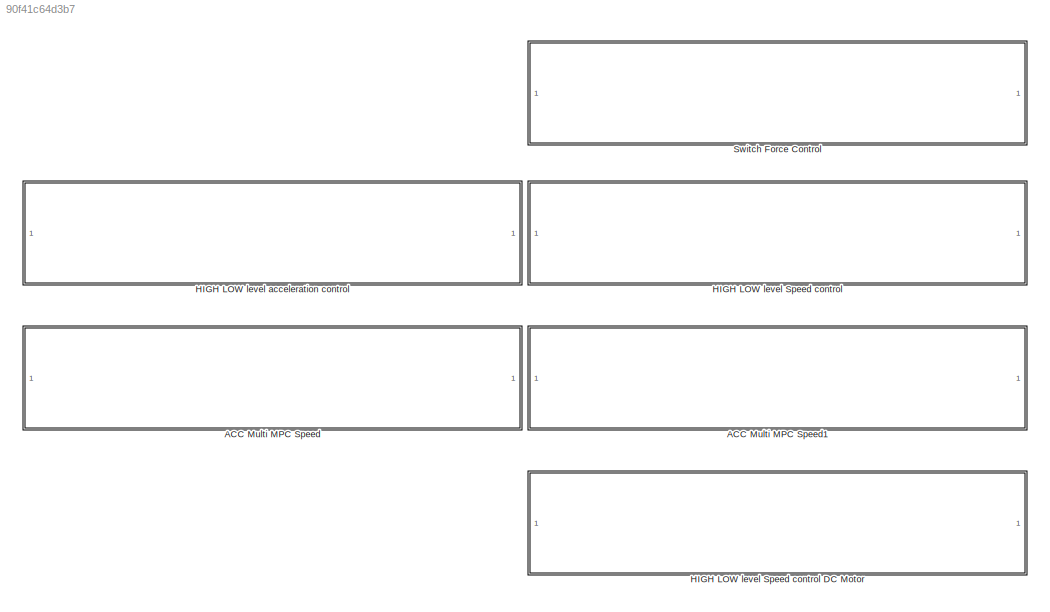
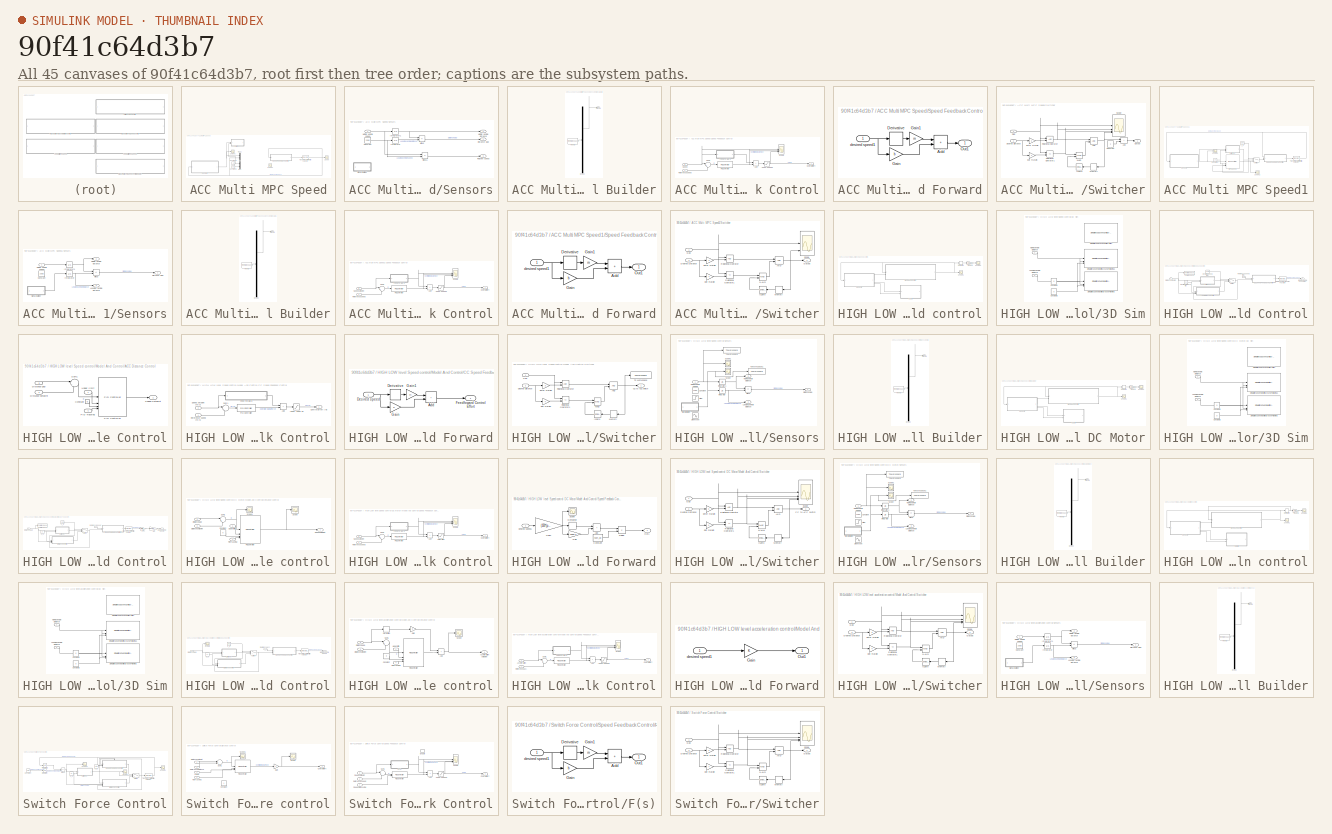
[diagram: thumbnail index - all 45 canvases of the model, root first then tree order]
MODEL slx_90f41c64d3b7
KIND model
CONFIG AbsTol = auto
CONFIG EnableMultiTasking = off
CONFIG FixedStep = 0.001
CONFIG MaxStep = auto
CONFIG MinStep = auto
CONFIG RelTol = 1e-3
CONFIG SampleTimeConstraint = Unconstrained
CONFIG SolverName = FixedStepAuto
CONFIG StartTime = 0.0
CONFIG StopTime = 100
BLOCK [SubSystem] ACC Multi MPC Speed
  Commented = on
BLOCK [Constant] ACC Multi MPC Speed/Constant1
  Value = 30/3.6
BLOCK [Constant] ACC Multi MPC Speed/Constant2
  Value = 20
BLOCK [Mux] ACC Multi MPC Speed/Mux
  DisplayOption = bar
  Inputs = 2
BLOCK [Mux] ACC Multi MPC Speed/Mux1
  DisplayOption = bar
  Inputs = 2
BLOCK [Scope] ACC Multi MPC Speed/Scope
  Floating = off
  NumInputPorts = 1
  ScopeSpecificationString = Simulink.scopes.TimeScopeBlockCfg('CurrentConfiguration', extmgr.ConfigurationSet(extmgr.Configuration('Core','General UI',true),extmgr.Configuration('Core','Source UI',true),extmgr.Configuration('Sources','WiredSimulink',true,'DataLoggingVariableName','ScopeData1'),extmgr.Configuration('Visuals','Time Domain',true,'SerializedDisplays',{struct('MinYLimReal','-112.66632','MaxYLimReal','21.77774','Y...<+1389ch>
BLOCK [Scope] ACC Multi MPC Speed/Scope1
  Floating = off
  NumInputPorts = 1
  ScopeSpecificationString = Simulink.scopes.TimeScopeBlockCfg('CurrentConfiguration', extmgr.ConfigurationSet(extmgr.Configuration('Core','General UI',true),extmgr.Configuration('Core','Source UI',true),extmgr.Configuration('Sources','WiredSimulink',true,'DataLoggingVariableName','ScopeData1'),extmgr.Configuration('Visuals','Time Domain',true,'SerializedDisplays',{struct('MinYLimReal','-938.12663','MaxYLimReal','9435.95551',...<+1397ch>
BLOCK [Scope] ACC Multi MPC Speed/Scope2
  Floating = off
  NumInputPorts = 1
  ScopeSpecificationString = Simulink.scopes.TimeScopeBlockCfg('CurrentConfiguration', extmgr.ConfigurationSet(extmgr.Configuration('Core','General UI',true),extmgr.Configuration('Core','Source UI',true),extmgr.Configuration('Sources','WiredSimulink',true,'DataLoggingVariableName','ScopeData2'),extmgr.Configuration('Visuals','Time Domain',true,'SerializedDisplays',{struct('MinYLimReal','-1784.86633','MaxYLimReal','181.27662',...<+1393ch>
BLOCK [SubSystem] ACC Multi MPC Speed/Sensors
BLOCK [Constant] ACC Multi MPC Speed/Sensors/Constant
  Value = 20/3.6
BLOCK [Outport] ACC Multi MPC Speed/Sensors/Distance Gap
BLOCK [Integrator] ACC Multi MPC Speed/Sensors/Integrator
  InitialCondition = 100
BLOCK [Integrator] ACC Multi MPC Speed/Sensors/Integrator1
BLOCK [Outport] ACC Multi MPC Speed/Sensors/MORE Vehicle distance
  Port = 2
BLOCK [Inport] ACC Multi MPC Speed/Sensors/MORE Vehicle speed
BLOCK [Sum] ACC Multi MPC Speed/Sensors/Minus
  IconShape = rectangular
  Inputs = -+
BLOCK [Sum] ACC Multi MPC Speed/Sensors/Minus1
  IconShape = rectangular
  Inputs = +-
BLOCK [Outport] ACC Multi MPC Speed/Sensors/Relative speed
  Port = 3
BLOCK [SubSystem] ACC Multi MPC Speed/Sensors/Signal Builder
  ClipboardFcn = sigbuilder_block('clipboard');
  CloseFcn = sigbuilder_block('close');
  ContinueFcn = sigbuilder_block('continue');
  CopyFcn = sigbuilder_block('copy');
  DeleteFcn = sigbuilder_block('delete');
  LoadFcn = sigbuilder_block('load');
  MaskHideContents = on
  ModelCloseFcn = sigbuilder_block('modelClose');
  NameChangeFcn = sigbuilder_block('namechange');
  OpenFcn = sigbuilder_block('open',[446.4 127.8 550.8 400.2 ]);
  PauseFcn = sigbuilder_block('pause');
  PreSaveFcn = sigbuilder_block('preSave');
  StartFcn = sigbuilder_block('start');
  StopFcn = sigbuilder_block('stop');
  Tag = STV Subsys
BLOCK [Demux] ACC Multi MPC Speed/Sensors/Signal Builder/Demux
  DisplayOption = none
  Outputs = 1
  Tag = STV Demux
BLOCK [FromWorkspace] ACC Multi MPC Speed/Sensors/Signal Builder/FromWs
  Tag = STV FromWs
  VariableName = tuvar
BLOCK [Outport] ACC Multi MPC Speed/Sensors/Signal Builder/Signal 1
  Tag = STV Outport
BLOCK [SubSystem] ACC Multi MPC Speed/Speed Feedback Control
BLOCK [Saturate] ACC Multi MPC Speed/Speed Feedback Control/-5000 -5000 N1
  LowerLimit = -5000
  UpperLimit = 5000
BLOCK [Sum] ACC Multi MPC Speed/Speed Feedback Control/Add
  IconShape = rectangular
BLOCK [Outport] ACC Multi MPC Speed/Speed Feedback Control/Control effort
BLOCK [SubSystem] ACC Multi MPC Speed/Speed Feedback Control/Feed Forward
BLOCK [Sum] ACC Multi MPC Speed/Speed Feedback Control/Feed Forward/Add
  IconShape = rectangular
BLOCK [Derivative] ACC Multi MPC Speed/Speed Feedback Control/Feed Forward/Derivative
BLOCK [Gain] ACC Multi MPC Speed/Speed Feedback Control/Feed Forward/Gain
  Gain = b
BLOCK [Gain] ACC Multi MPC Speed/Speed Feedback Control/Feed Forward/Gain1
  Gain = m
BLOCK [Outport] ACC Multi MPC Speed/Speed Feedback Control/Feed Forward/Out1
BLOCK [Inport] ACC Multi MPC Speed/Speed Feedback Control/Feed Forward/desired speed1
BLOCK [Reference] ACC Multi MPC Speed/Speed Feedback Control/PID Controller  REF=slpidlib/PID Controller
  SourceBlock = slpidlib/PID Controller
  SourceType = PID 1dof
BLOCK [Inport] ACC Multi MPC Speed/Speed Feedback Control/Reference speed
BLOCK [Scope] ACC Multi MPC Speed/Speed Feedback Control/Scope
  Floating = off
  NumInputPorts = 3
  ScopeSpecificationString = Simulink.scopes.TimeScopeBlockCfg('CurrentConfiguration', extmgr.ConfigurationSet(extmgr.Configuration('Core','General UI',true),extmgr.Configuration('Core','Source UI',true),extmgr.Configuration('Sources','WiredSimulink',true,'DataLoggingVariableName','ScopeData1'),extmgr.Configuration('Visuals','Time Domain',true,'SerializedDisplays',{struct('MinYLimReal','-886.71934','MaxYLimReal','625.29735','...<+1401ch>
BLOCK [Inport] ACC Multi MPC Speed/Speed Feedback Control/Speed
  Port = 2
BLOCK [Sum] ACC Multi MPC Speed/Speed Feedback Control/Sum1
  Inputs = |+-
BLOCK [SubSystem] ACC Multi MPC Speed/Switcher
BLOCK [Logic] ACC Multi MPC Speed/Switcher/AND
  AllPortsSameDT = off
  IconShape = distinctive
  OutDataTypeStr = boolean
BLOCK [Sum] ACC Multi MPC Speed/Switcher/Add
  IconShape = rectangular
BLOCK [Constant] ACC Multi MPC Speed/Switcher/Constant
BLOCK [Inport] ACC Multi MPC Speed/Switcher/Desired Distance
  Port = 2
BLOCK [Gain] ACC Multi MPC Speed/Switcher/Enter margin
  Gain = 3
BLOCK [Gain] ACC Multi MPC Speed/Switcher/Exit margin
  Gain = 4
BLOCK [Inport] ACC Multi MPC Speed/Switcher/Gap
BLOCK [Reference] ACC Multi MPC Speed/Switcher/IsZero  REF=simulink/Logic and Bit
Operations/Compare
To Zero
  SourceBlock = simulink/Logic and Bit\nOperations/Compare\nTo Zero
  SourceType = Compare To Zero
BLOCK [Memory] ACC Multi MPC Speed/Switcher/Memory
BLOCK [Logic] ACC Multi MPC Speed/Switcher/NAND
  AllPortsSameDT = off
  IconShape = distinctive
  Operator = NAND
  OutDataTypeStr = boolean
BLOCK [Outport] ACC Multi MPC Speed/Switcher/Output
BLOCK [RelationalOperator] ACC Multi MPC Speed/Switcher/Relational Operator
  InputSameDT = off
  OutDataTypeStr = boolean
  RndMeth = Simplest
BLOCK [RelationalOperator] ACC Multi MPC Speed/Switcher/Relational Operator1
  InputSameDT = off
  Operator = <=
  OutDataTypeStr = boolean
  RndMeth = Simplest
BLOCK [Scope] ACC Multi MPC Speed/Switcher/Scope
  Floating = off
  NumInputPorts = 4
  ScopeSpecificationString = Simulink.scopes.TimeScopeBlockCfg('CurrentConfiguration', extmgr.ConfigurationSet(extmgr.Configuration('Core','General UI',true),extmgr.Configuration('Core','Source UI',true),extmgr.Configuration('Sources','WiredSimulink',true,'DataLoggingVariableName','ScopeData5'),extmgr.Configuration('Visuals','Time Domain',true,'SerializedDisplays',{struct('MinYLimReal','-16.05436','MaxYLimReal','144.48922','Y...<+1479ch>
BLOCK [Reference] ACC Multi MPC Speed/Transfer Fcn (with initial outputs)  REF=simulink_extras/Additional
Linear/Transfer Fcn
(with initial outputs)
  SourceBlock = simulink_extras/Additional\nLinear/Transfer Fcn\n(with initial outputs)
  SourceType = Transfer Function with Initial Outputs
BLOCK [SubSystem] ACC Multi MPC Speed1
  Commented = on
BLOCK [Constant] ACC Multi MPC Speed1/Constant
  Value = 20
BLOCK [Reference] ACC Multi MPC Speed1/MPC Speed  REF=mpclib/MPC Controller  (lib defined in mdl_ae329e0e0455)
  SCDEnableBlockLinearizationSpecification = on
  SourceBlock = mpclib/MPC Controller
  SourceType = MPC
BLOCK [Scope] ACC Multi MPC Speed1/Scope1
  Floating = off
  NumInputPorts = 1
  ScopeSpecificationString = Simulink.scopes.TimeScopeBlockCfg('CurrentConfiguration', extmgr.ConfigurationSet(extmgr.Configuration('Core','General UI',true),extmgr.Configuration('Core','Source UI',true),extmgr.Configuration('Sources','WiredSimulink',true,'DataLoggingVariableName','ScopeData1'),extmgr.Configuration('Visuals','Time Domain',true,'SerializedDisplays',{struct('MinYLimReal','20.36284','MaxYLimReal','192.38458','YL...<+1369ch>
BLOCK [Scope] ACC Multi MPC Speed1/Scope2
  Floating = off
  NumInputPorts = 1
  ScopeSpecificationString = Simulink.scopes.TimeScopeBlockCfg('CurrentConfiguration', extmgr.ConfigurationSet(extmgr.Configuration('Core','General UI',true),extmgr.Configuration('Core','Source UI',true),extmgr.Configuration('Sources','WiredSimulink',true,'DataLoggingVariableName','ScopeData2'),extmgr.Configuration('Visuals','Time Domain',true,'SerializedDisplays',{struct('MinYLimReal','-9618.8054','MaxYLimReal','31266.01049'...<+1532ch>
BLOCK [SubSystem] ACC Multi MPC Speed1/Sensors
BLOCK [Constant] ACC Multi MPC Speed1/Sensors/Constant
  Value = 20/3.6
BLOCK [Outport] ACC Multi MPC Speed1/Sensors/Distance Gap
BLOCK [Integrator] ACC Multi MPC Speed1/Sensors/Integrator
  InitialCondition = 100
BLOCK [Integrator] ACC Multi MPC Speed1/Sensors/Integrator1
BLOCK [Outport] ACC Multi MPC Speed1/Sensors/Leading Vehicle distance
  Port = 3
BLOCK [Outport] ACC Multi MPC Speed1/Sensors/MORE Vehicle distance
  Port = 2
BLOCK [Inport] ACC Multi MPC Speed1/Sensors/MORE Vehicle speed
BLOCK [Sum] ACC Multi MPC Speed1/Sensors/Minus
  IconShape = rectangular
  Inputs = -+
BLOCK [SubSystem] ACC Multi MPC Speed1/Sensors/Signal Builder
  ClipboardFcn = sigbuilder_block('clipboard');
  CloseFcn = sigbuilder_block('close');
  ContinueFcn = sigbuilder_block('continue');
  CopyFcn = sigbuilder_block('copy');
  DeleteFcn = sigbuilder_block('delete');
  LoadFcn = sigbuilder_block('load');
  MaskHideContents = on
  ModelCloseFcn = sigbuilder_block('modelClose');
  NameChangeFcn = sigbuilder_block('namechange');
  OpenFcn = sigbuilder_block('open',[446.4 127.8 550.8 400.2 ]);
  PauseFcn = sigbuilder_block('pause');
  PreSaveFcn = sigbuilder_block('preSave');
  StartFcn = sigbuilder_block('start');
  StopFcn = sigbuilder_block('stop');
  Tag = STV Subsys
BLOCK [Demux] ACC Multi MPC Speed1/Sensors/Signal Builder/Demux
  DisplayOption = none
  Outputs = 1
  Tag = STV Demux
BLOCK [FromWorkspace] ACC Multi MPC Speed1/Sensors/Signal Builder/FromWs
  Tag = STV FromWs
  VariableName = tuvar
BLOCK [Outport] ACC Multi MPC Speed1/Sensors/Signal Builder/Signal 1
  Tag = STV Outport
BLOCK [SubSystem] ACC Multi MPC Speed1/Speed Feedback Control
BLOCK [Saturate] ACC Multi MPC Speed1/Speed Feedback Control/-5000 -5000 N1
  LowerLimit = -5000
  UpperLimit = 5000
BLOCK [Sum] ACC Multi MPC Speed1/Speed Feedback Control/Add
  IconShape = rectangular
BLOCK [Outport] ACC Multi MPC Speed1/Speed Feedback Control/Control effort
BLOCK [SubSystem] ACC Multi MPC Speed1/Speed Feedback Control/Feed Forward
BLOCK [Sum] ACC Multi MPC Speed1/Speed Feedback Control/Feed Forward/Add
  IconShape = rectangular
BLOCK [Derivative] ACC Multi MPC Speed1/Speed Feedback Control/Feed Forward/Derivative
BLOCK [Gain] ACC Multi MPC Speed1/Speed Feedback Control/Feed Forward/Gain
  Gain = b
BLOCK [Gain] ACC Multi MPC Speed1/Speed Feedback Control/Feed Forward/Gain1
  Gain = m
BLOCK [Outport] ACC Multi MPC Speed1/Speed Feedback Control/Feed Forward/Out1
BLOCK [Inport] ACC Multi MPC Speed1/Speed Feedback Control/Feed Forward/desired speed1
BLOCK [Reference] ACC Multi MPC Speed1/Speed Feedback Control/PID Controller  REF=slpidlib/PID Controller
  SourceBlock = slpidlib/PID Controller
  SourceType = PID 1dof
BLOCK [Inport] ACC Multi MPC Speed1/Speed Feedback Control/Reference speed
BLOCK [Scope] ACC Multi MPC Speed1/Speed Feedback Control/Scope
  Floating = off
  NumInputPorts = 3
  ScopeSpecificationString = Simulink.scopes.TimeScopeBlockCfg('CurrentConfiguration', extmgr.ConfigurationSet(extmgr.Configuration('Core','General UI',true),extmgr.Configuration('Core','Source UI',true),extmgr.Configuration('Sources','WiredSimulink',true,'DataLoggingVariableName','ScopeData1'),extmgr.Configuration('Visuals','Time Domain',true,'SerializedDisplays',{struct('MinYLimReal','-5888160921.50826','MaxYLimReal','30853...<+1461ch>
BLOCK [Inport] ACC Multi MPC Speed1/Speed Feedback Control/Speed setpoint
  Port = 2
BLOCK [Sum] ACC Multi MPC Speed1/Speed Feedback Control/Sum1
  Inputs = |+-
BLOCK [Switch] ACC Multi MPC Speed1/Switch
  Criteria = u2 > Threshold
  InputSameDT = off
  SaturateOnIntegerOverflow = off
BLOCK [SubSystem] ACC Multi MPC Speed1/Switcher
BLOCK [Logic] ACC Multi MPC Speed1/Switcher/AND
  AllPortsSameDT = off
  IconShape = distinctive
  OutDataTypeStr = boolean
BLOCK [Inport] ACC Multi MPC Speed1/Switcher/Desired Distance
  Port = 2
BLOCK [Gain] ACC Multi MPC Speed1/Switcher/Enter margin
  Gain = 3
BLOCK [Gain] ACC Multi MPC Speed1/Switcher/Exit margin
  Gain = 4
BLOCK [Inport] ACC Multi MPC Speed1/Switcher/Gap
BLOCK [Reference] ACC Multi MPC Speed1/Switcher/IsZero  REF=simulink/Logic and Bit
Operations/Compare
To Zero
  SourceBlock = simulink/Logic and Bit\nOperations/Compare\nTo Zero
  SourceType = Compare To Zero
BLOCK [Memory] ACC Multi MPC Speed1/Switcher/Memory
BLOCK [Logic] ACC Multi MPC Speed1/Switcher/NAND
  AllPortsSameDT = off
  IconShape = distinctive
  Operator = NAND
  OutDataTypeStr = boolean
BLOCK [Outport] ACC Multi MPC Speed1/Switcher/Output
BLOCK [RelationalOperator] ACC Multi MPC Speed1/Switcher/Relational Operator
  InputSameDT = off
  OutDataTypeStr = boolean
  RndMeth = Simplest
BLOCK [RelationalOperator] ACC Multi MPC Speed1/Switcher/Relational Operator1
  InputSameDT = off
  Operator = <=
  OutDataTypeStr = boolean
  RndMeth = Simplest
BLOCK [Scope] ACC Multi MPC Speed1/Switcher/Scope
  Floating = off
  NumInputPorts = 4
  ScopeSpecificationString = Simulink.scopes.TimeScopeBlockCfg('CurrentConfiguration', extmgr.ConfigurationSet(extmgr.Configuration('Core','General UI',true),extmgr.Configuration('Core','Source UI',true),extmgr.Configuration('Sources','WiredSimulink',true,'DataLoggingVariableName','ScopeData5'),extmgr.Configuration('Visuals','Time Domain',true,'SerializedDisplays',{struct('MinYLimReal','-21.90611','MaxYLimReal','197.15503','Y...<+1425ch>
BLOCK [Reference] ACC Multi MPC Speed1/Transfer Fcn (with initial outputs)  REF=simulink_extras/Additional
Linear/Transfer Fcn
(with initial outputs)
  SourceBlock = simulink_extras/Additional\nLinear/Transfer Fcn\n(with initial outputs)
  SourceType = Transfer Function with Initial Outputs
BLOCK [Constant] ACC Multi MPC Speed1/v_d
  Value = 30/3.6
BLOCK [SubSystem] HIGH LOW level Speed control
BLOCK [SubSystem] HIGH LOW level Speed control DC Motor
  Commented = on
BLOCK [SubSystem] HIGH LOW level Speed control DC Motor/3D Sim
  Commented = on
BLOCK [Constant] HIGH LOW level Speed control DC Motor/3D Sim/Constant1
  Value = 0
BLOCK [Constant] HIGH LOW level Speed control DC Motor/3D Sim/Constant2
  Value = 0
BLOCK [Inport] HIGH LOW level Speed control DC Motor/3D Sim/Leading Vehicle distance
  Port = 2
BLOCK [Inport] HIGH LOW level Speed control DC Motor/3D Sim/MORE Vehicle Distance
BLOCK [Reference] HIGH LOW level Speed control DC Motor/3D Sim/Simulation 3D Scene Configuration  REF=sim3dlib/Simulation 3D Scene Configuration
  Priority = 0
  SourceBlock = sim3dlib/Simulation 3D Scene Configuration
  SourceType = Simulation 3D Scene Configuration
BLOCK [Reference] HIGH LOW level Speed control DC Motor/3D Sim/Simulation 3D Vehicle with Ground Following  REF=sim3dautolib/Simulation 3D Vehicle with Ground Following
  Priority = -1
  SourceBlock = sim3dautolib/Simulation 3D Vehicle with Ground Following
  SourceType = Simulation 3D Vehicle with Ground Following
BLOCK [Reference] HIGH LOW level Speed control DC Motor/3D Sim/Simulation 3D Vehicle with Ground Following1  REF=sim3dautolib/Simulation 3D Vehicle with Ground Following
  Priority = -1
  SourceBlock = sim3dautolib/Simulation 3D Vehicle with Ground Following
  SourceType = Simulation 3D Vehicle with Ground Following
BLOCK [Derivative] HIGH LOW level Speed control DC Motor/Derivative
BLOCK [SubSystem] HIGH LOW level Speed control DC Motor/Model And Control
BLOCK [Inport] HIGH LOW level Speed control DC Motor/Model And Control/Distance Gap
  Port = 2
BLOCK [SubSystem] HIGH LOW level Speed control DC Motor/Model And Control/Distance control
BLOCK [Constant] HIGH LOW level Speed control DC Motor/Model And Control/Distance control/Constant
  Value = 0
BLOCK [Inport] HIGH LOW level Speed control DC Motor/Model And Control/Distance control/Distance gap
  Port = 3
BLOCK [Inport] HIGH LOW level Speed control DC Motor/Model And Control/Distance control/Distance setpoint
  Port = 2
BLOCK [Reference] HIGH LOW level Speed control DC Motor/Model And Control/Distance control/PID Controller  REF=slpidlib/PID Controller
  SourceBlock = slpidlib/PID Controller
  SourceType = PID 1dof
BLOCK [Inport] HIGH LOW level Speed control DC Motor/Model And Control/Distance control/PID Tracking
  Port = 4
BLOCK [Scope] HIGH LOW level Speed control DC Motor/Model And Control/Distance control/Scope
  Floating = off
  NumInputPorts = 1
  ScopeSpecificationString = Simulink.scopes.TimeScopeBlockCfg('CurrentConfiguration', extmgr.ConfigurationSet(extmgr.Configuration('Core','General UI',true),extmgr.Configuration('Core','Source UI',true),extmgr.Configuration('Sources','WiredSimulink',true,'DataLoggingVariableName','ScopeData1'),extmgr.Configuration('Visuals','Time Domain',true,'SerializedDisplays',{struct('MinYLimReal','-0.69691','MaxYLimReal','9.33669','YLab...<+1411ch>
BLOCK [Scope] HIGH LOW level Speed control DC Motor/Model And Control/Distance control/Scope1
  Floating = off
  NumInputPorts = 1
  ScopeSpecificationString = Simulink.scopes.TimeScopeBlockCfg('CurrentConfiguration', extmgr.ConfigurationSet(extmgr.Configuration('Core','General UI',true),extmgr.Configuration('Core','Source UI',true),extmgr.Configuration('Sources','WiredSimulink',true,'DataLoggingVariableName','ScopeData4'),extmgr.Configuration('Visuals','Time Domain',true,'SerializedDisplays',{struct('MinYLimReal','-8.85417','MaxYLimReal','89.87269','YLa...<+1516ch>
BLOCK [Outport] HIGH LOW level Speed control DC Motor/Model And Control/Distance control/Speed Setpoint
BLOCK [Sum] HIGH LOW level Speed control DC Motor/Model And Control/Distance control/Sum1
  Inputs = |+-
BLOCK [Inport] HIGH LOW level Speed control DC Motor/Model And Control/Distance control/Upper limit
BLOCK [Gain] HIGH LOW level Speed control DC Motor/Model And Control/Gain
  Gain = (30/3.6)/250
BLOCK [Gain] HIGH LOW level Speed control DC Motor/Model And Control/Gain1
  Gain = 1/(pi/30)
BLOCK [Outport] HIGH LOW level Speed control DC Motor/Model And Control/MORE Vehicle Speed
BLOCK [Inport] HIGH LOW level Speed control DC Motor/Model And Control/Reference speed
BLOCK [SubSystem] HIGH LOW level Speed control DC Motor/Model And Control/Speed Feedback Control
BLOCK [Sum] HIGH LOW level Speed control DC Motor/Model And Control/Speed Feedback Control/Add
  IconShape = rectangular
BLOCK [Outport] HIGH LOW level Speed control DC Motor/Model And Control/Speed Feedback Control/Control effort
BLOCK [SubSystem] HIGH LOW level Speed control DC Motor/Model And Control/Speed Feedback Control/Feed Forward
BLOCK [Sum] HIGH LOW level Speed control DC Motor/Model And Control/Speed Feedback Control/Feed Forward/Add
  IconShape = rectangular
BLOCK [Constant] HIGH LOW level Speed control DC Motor/Model And Control/Speed Feedback Control/Feed Forward/Constant
  Value = num_dc
BLOCK [Derivative] HIGH LOW level Speed control DC Motor/Model And Control/Speed Feedback Control/Feed Forward/Derivative
BLOCK [Product] HIGH LOW level Speed control DC Motor/Model And Control/Speed Feedback Control/Feed Forward/Divide
  Inputs = */
BLOCK [Gain] HIGH LOW level Speed control DC Motor/Model And Control/Speed Feedback Control/Feed Forward/Gain
  Gain = 2269.4
BLOCK [Gain] HIGH LOW level Speed control DC Motor/Model And Control/Speed Feedback Control/Feed Forward/Gain1
  Gain = (250*(pi/30))/(30/3.6)
BLOCK [Outport] HIGH LOW level Speed control DC Motor/Model And Control/Speed Feedback Control/Feed Forward/Out1
BLOCK [Scope] HIGH LOW level Speed control DC Motor/Model And Control/Speed Feedback Control/Feed Forward/Scope
  Floating = off
  NumInputPorts = 1
  ScopeSpecificationString = Simulink.scopes.TimeScopeBlockCfg('CurrentConfiguration', extmgr.ConfigurationSet(extmgr.Configuration('Core','General UI',true),extmgr.Configuration('Core','Source UI',true),extmgr.Configuration('Sources','WiredSimulink',true,'DataLoggingVariableName','ScopeData2'),extmgr.Configuration('Visuals','Time Domain',true,'SerializedDisplays',{struct('MinYLimReal','16.31702','MaxYLimReal','27.27582','YLa...<+1365ch>
BLOCK [Inport] HIGH LOW level Speed control DC Motor/Model And Control/Speed Feedback Control/Feed Forward/desired speed1
BLOCK [Reference] HIGH LOW level Speed control DC Motor/Model And Control/Speed Feedback Control/PID Controller  REF=slpidlib/PID Controller
  SourceBlock = slpidlib/PID Controller
  SourceType = PID 1dof
BLOCK [Inport] HIGH LOW level Speed control DC Motor/Model And Control/Speed Feedback Control/Reference speed
BLOCK [Saturate] HIGH LOW level Speed control DC Motor/Model And Control/Speed Feedback Control/Saturation
  LowerLimit = -12
  UpperLimit = 12
BLOCK [Scope] HIGH LOW level Speed control DC Motor/Model And Control/Speed Feedback Control/Scope
  Floating = off
  NumInputPorts = 3
  ScopeSpecificationString = Simulink.scopes.TimeScopeBlockCfg('CurrentConfiguration', extmgr.ConfigurationSet(extmgr.Configuration('Core','General UI',true),extmgr.Configuration('Core','Source UI',true),extmgr.Configuration('Sources','WiredSimulink',true,'DataLoggingVariableName','ScopeData1'),extmgr.Configuration('Visuals','Time Domain',true,'SerializedDisplays',{struct('MinYLimReal','-15.01049','MaxYLimReal','15.09444','YL...<+1393ch>
BLOCK [Inport] HIGH LOW level Speed control DC Motor/Model And Control/Speed Feedback Control/Speed setpoint
  Port = 2
BLOCK [Sum] HIGH LOW level Speed control DC Motor/Model And Control/Speed Feedback Control/Sum1
  Inputs = |+-
BLOCK [Switch] HIGH LOW level Speed control DC Motor/Model And Control/Switch
  Criteria = u2 > Threshold
  InputSameDT = off
  SaturateOnIntegerOverflow = off
BLOCK [SubSystem] HIGH LOW level Speed control DC Motor/Model And Control/Switcher
BLOCK [Logic] HIGH LOW level Speed control DC Motor/Model And Control/Switcher/AND
  AllPortsSameDT = off
  IconShape = distinctive
  OutDataTypeStr = boolean
BLOCK [Outport] HIGH LOW level Speed control DC Motor/Model And Control/Switcher/CC to ACC switch
BLOCK [Inport] HIGH LOW level Speed control DC Motor/Model And Control/Switcher/Desired Distance
  Port = 2
BLOCK [Gain] HIGH LOW level Speed control DC Motor/Model And Control/Switcher/Enter margin
  Gain = 3
BLOCK [Gain] HIGH LOW level Speed control DC Motor/Model And Control/Switcher/Exit margin
  Gain = 4
BLOCK [Inport] HIGH LOW level Speed control DC Motor/Model And Control/Switcher/Gap
BLOCK [Reference] HIGH LOW level Speed control DC Motor/Model And Control/Switcher/IsZero  REF=simulink/Logic and Bit
Operations/Compare
To Zero
  SourceBlock = simulink/Logic and Bit\nOperations/Compare\nTo Zero
  SourceType = Compare To Zero
BLOCK [Memory] HIGH LOW level Speed control DC Motor/Model And Control/Switcher/Memory
BLOCK [Logic] HIGH LOW level Speed control DC Motor/Model And Control/Switcher/NAND
  AllPortsSameDT = off
  IconShape = distinctive
  Operator = NAND
  OutDataTypeStr = boolean
BLOCK [RelationalOperator] HIGH LOW level Speed control DC Motor/Model And Control/Switcher/Relational Operator
  InputSameDT = off
  OutDataTypeStr = boolean
  RndMeth = Simplest
BLOCK [RelationalOperator] HIGH LOW level Speed control DC Motor/Model And Control/Switcher/Relational Operator1
  InputSameDT = off
  Operator = <=
  OutDataTypeStr = boolean
  RndMeth = Simplest
BLOCK [Scope] HIGH LOW level Speed control DC Motor/Model And Control/Switcher/Scope
  Floating = off
  NumInputPorts = 4
  ScopeSpecificationString = Simulink.scopes.TimeScopeBlockCfg('CurrentConfiguration', extmgr.ConfigurationSet(extmgr.Configuration('Core','General UI',true),extmgr.Configuration('Core','Source UI',true),extmgr.Configuration('Sources','WiredSimulink',true,'DataLoggingVariableName','ScopeData5'),extmgr.Configuration('Visuals','Time Domain',true,'SerializedDisplays',{struct('MinYLimReal','-12.5','MaxYLimReal','112.5','YLabelRea...<+1455ch>
BLOCK [ToWorkspace] HIGH LOW level Speed control DC Motor/Model And Control/To Workspace
  FixptAsFi = on
  MaxDataPoints = inf
  SampleTime = -1
  Save2DSignal = 2-D array (concatenate along first dimension)
  VariableName = gap
BLOCK [Reference] HIGH LOW level Speed control DC Motor/Model And Control/Transfer Fcn (with initial outputs)  REF=simulink_extras/Additional
Linear/Transfer Fcn
(with initial outputs)
  SourceBlock = simulink_extras/Additional\nLinear/Transfer Fcn\n(with initial outputs)
  SourceType = Transfer Function with Initial Outputs
BLOCK [Constant] HIGH LOW level Speed control DC Motor/Model And Control/d_d
  Value = 20
BLOCK [Constant] HIGH LOW level Speed control DC Motor/Model And Control/v_d
  Value = 30/3.6
BLOCK [Scope] HIGH LOW level Speed control DC Motor/Scope1
  Floating = off
  NumInputPorts = 1
  ScopeSpecificationString = Simulink.scopes.TimeScopeBlockCfg('CurrentConfiguration', extmgr.ConfigurationSet(extmgr.Configuration('Core','General UI',true),extmgr.Configuration('Core','Source UI',true),extmgr.Configuration('Sources','WiredSimulink',true,'DataLoggingVariableName','ScopeData2'),extmgr.Configuration('Visuals','Time Domain',true,'SerializedDisplays',{struct('MinYLimReal','-652.80239','MaxYLimReal','916.8768','Y...<+1702ch>
BLOCK [Scope] HIGH LOW level Speed control DC Motor/Scope2
  Floating = off
  NumInputPorts = 1
  ScopeSpecificationString = Simulink.scopes.TimeScopeBlockCfg('CurrentConfiguration', extmgr.ConfigurationSet(extmgr.Configuration('Core','General UI',true),extmgr.Configuration('Core','Source UI',true),extmgr.Configuration('Sources','WiredSimulink',true,'DataLoggingVariableName','ScopeData7'),extmgr.Configuration('Visuals','Time Domain',true,'SerializedDisplays',{struct('MinYLimReal','-0.40143','MaxYLimReal','0.05572','YLab...<+1369ch>
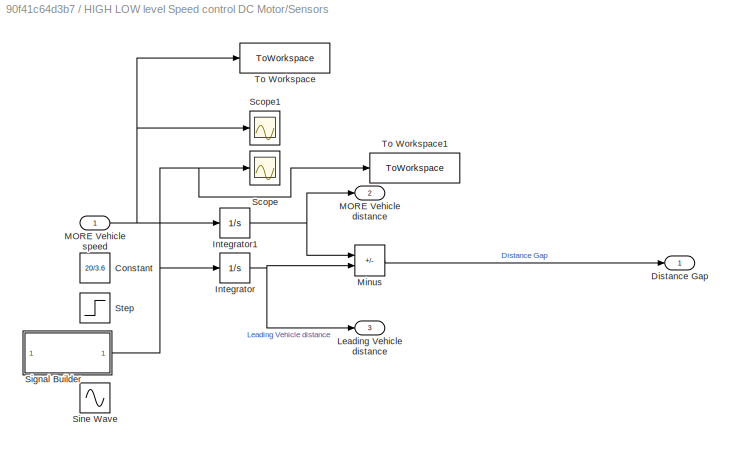
BLOCK [SubSystem] HIGH LOW level Speed control DC Motor/Sensors
BLOCK [Constant] HIGH LOW level Speed control DC Motor/Sensors/Constant
  Value = 20/3.6
BLOCK [Outport] HIGH LOW level Speed control DC Motor/Sensors/Distance Gap
BLOCK [Integrator] HIGH LOW level Speed control DC Motor/Sensors/Integrator
  InitialCondition = 100
BLOCK [Integrator] HIGH LOW level Speed control DC Motor/Sensors/Integrator1
BLOCK [Outport] HIGH LOW level Speed control DC Motor/Sensors/Leading Vehicle distance
  Port = 3
BLOCK [Outport] HIGH LOW level Speed control DC Motor/Sensors/MORE Vehicle distance
  Port = 2
BLOCK [Inport] HIGH LOW level Speed control DC Motor/Sensors/MORE Vehicle speed
BLOCK [Sum] HIGH LOW level Speed control DC Motor/Sensors/Minus
  IconShape = rectangular
  Inputs = -+
BLOCK [Scope] HIGH LOW level Speed control DC Motor/Sensors/Scope
  Floating = off
  NumInputPorts = 1
  ScopeSpecificationString = Simulink.scopes.TimeScopeBlockCfg('CurrentConfiguration', extmgr.ConfigurationSet(extmgr.Configuration('Core','General UI',true),extmgr.Configuration('Core','Source UI',true),extmgr.Configuration('Sources','WiredSimulink',true,'DataLoggingVariableName','Speed','DataLoggingSaveFormat','Array'),extmgr.Configuration('Visuals','Time Domain',true,'SerializedDisplays',{struct('MinYLimReal','5.55555','Ma...<+1435ch>
BLOCK [Scope] HIGH LOW level Speed control DC Motor/Sensors/Scope1
  Floating = off
  NumInputPorts = 1
  ScopeSpecificationString = Simulink.scopes.TimeScopeBlockCfg('CurrentConfiguration', extmgr.ConfigurationSet(extmgr.Configuration('Core','General UI',true),extmgr.Configuration('Core','Source UI',true),extmgr.Configuration('Sources','WiredSimulink',true,'DataLoggingVariableName','SpeedEgo','DataLoggingSaveFormat','Array'),extmgr.Configuration('Visuals','Time Domain',true,'SerializedDisplays',{struct('MinYLimReal','-652.8023...<+1399ch>
BLOCK [SubSystem] HIGH LOW level Speed control DC Motor/Sensors/Signal Builder
  ClipboardFcn = sigbuilder_block('clipboard');
  CloseFcn = sigbuilder_block('close');
  ContinueFcn = sigbuilder_block('continue');
  CopyFcn = sigbuilder_block('copy');
  DeleteFcn = sigbuilder_block('delete');
  LoadFcn = sigbuilder_block('load');
  MaskHideContents = on
  ModelCloseFcn = sigbuilder_block('modelClose');
  NameChangeFcn = sigbuilder_block('namechange');
  OpenFcn = sigbuilder_block('open',[446.4 127.8 550.8 400.2 ]);
  PauseFcn = sigbuilder_block('pause');
  PreSaveFcn = sigbuilder_block('preSave');
  StartFcn = sigbuilder_block('start');
  StopFcn = sigbuilder_block('stop');
  Tag = STV Subsys
BLOCK [Demux] HIGH LOW level Speed control DC Motor/Sensors/Signal Builder/Demux
  DisplayOption = none
  Outputs = 1
  Tag = STV Demux
BLOCK [FromWorkspace] HIGH LOW level Speed control DC Motor/Sensors/Signal Builder/FromWs
  Tag = STV FromWs
  VariableName = tuvar
BLOCK [Outport] HIGH LOW level Speed control DC Motor/Sensors/Signal Builder/Signal 1
  Tag = STV Outport
BLOCK [Sin] HIGH LOW level Speed control DC Motor/Sensors/Sine Wave
  Amplitude = 3
  Bias = 15/3.6
  Frequency = 0.3
  SampleTime = 0
BLOCK [Step] HIGH LOW level Speed control DC Motor/Sensors/Step
  After = 10/3.6
  Before = 20/3.6
  SampleTime = 0
  Time = 70
BLOCK [ToWorkspace] HIGH LOW level Speed control DC Motor/Sensors/To Workspace
  FixptAsFi = on
  MaxDataPoints = inf
  SampleTime = -1
  Save2DSignal = 2-D array (concatenate along first dimension)
  VariableName = ego_speed
BLOCK [ToWorkspace] HIGH LOW level Speed control DC Motor/Sensors/To Workspace1
  FixptAsFi = on
  MaxDataPoints = inf
  SampleTime = -1
  Save2DSignal = 2-D array (concatenate along first dimension)
  VariableName = lead_speed
BLOCK [Gain] HIGH LOW level Speed control DC Motor/m//s//s to G
  Gain = 1/9.81
BLOCK [SubSystem] HIGH LOW level Speed control/3D Sim
  Commented = on
BLOCK [Constant] HIGH LOW level Speed control/3D Sim/Constant1
  Value = 0
BLOCK [Constant] HIGH LOW level Speed control/3D Sim/Constant2
  Value = 0
BLOCK [Inport] HIGH LOW level Speed control/3D Sim/Leading Vehicle distance
  Port = 2
BLOCK [Inport] HIGH LOW level Speed control/3D Sim/MORE Vehicle Distance
BLOCK [Reference] HIGH LOW level Speed control/3D Sim/Simulation 3D Scene Configuration  REF=sim3dlib/Simulation 3D Scene Configuration
  Priority = 0
  SourceBlock = sim3dlib/Simulation 3D Scene Configuration
  SourceType = Simulation 3D Scene Configuration
BLOCK [Reference] HIGH LOW level Speed control/3D Sim/Simulation 3D Vehicle with Ground Following  REF=sim3dautolib/Simulation 3D Vehicle with Ground Following
  Priority = -1
  SourceBlock = sim3dautolib/Simulation 3D Vehicle with Ground Following
  SourceType = Simulation 3D Vehicle with Ground Following
BLOCK [Reference] HIGH LOW level Speed control/3D Sim/Simulation 3D Vehicle with Ground Following1  REF=sim3dautolib/Simulation 3D Vehicle with Ground Following
  Priority = -1
  SourceBlock = sim3dautolib/Simulation 3D Vehicle with Ground Following
  SourceType = Simulation 3D Vehicle with Ground Following
BLOCK [Derivative] HIGH LOW level Speed control/Derivative
BLOCK [SubSystem] HIGH LOW level Speed control/Model And Control
BLOCK [SubSystem] HIGH LOW level Speed control/Model And Control/ACC Distance Control
BLOCK [Constant] HIGH LOW level Speed control/Model And Control/ACC Distance Control/Constant
  Value = 0
BLOCK [Inport] HIGH LOW level Speed control/Model And Control/ACC Distance Control/Distance gap
  Port = 3
BLOCK [Inport] HIGH LOW level Speed control/Model And Control/ACC Distance Control/Distance setpoint
  Port = 2
BLOCK [Reference] HIGH LOW level Speed control/Model And Control/ACC Distance Control/PID Controller  REF=slpidlib/PID Controller
  SourceBlock = slpidlib/PID Controller
  SourceType = PID 1dof
BLOCK [Inport] HIGH LOW level Speed control/Model And Control/ACC Distance Control/PID Tracking
  Port = 4
BLOCK [Outport] HIGH LOW level Speed control/Model And Control/ACC Distance Control/Speed Setpoint
BLOCK [Sum] HIGH LOW level Speed control/Model And Control/ACC Distance Control/Sum1
  Inputs = |+-
BLOCK [Inport] HIGH LOW level Speed control/Model And Control/ACC Distance Control/Upper limit
BLOCK [SubSystem] HIGH LOW level Speed control/Model And Control/CC Speed Feedback Control
BLOCK [Saturate] HIGH LOW level Speed control/Model And Control/CC Speed Feedback Control/-5000 -5000 N1
  LowerLimit = -5000
  UpperLimit = 5000
BLOCK [Sum] HIGH LOW level Speed control/Model And Control/CC Speed Feedback Control/Add
  IconShape = rectangular
BLOCK [Outport] HIGH LOW level Speed control/Model And Control/CC Speed Feedback Control/Control Effort [N]
BLOCK [SubSystem] HIGH LOW level Speed control/Model And Control/CC Speed Feedback Control/Feed Forward
BLOCK [Sum] HIGH LOW level Speed control/Model And Control/CC Speed Feedback Control/Feed Forward/Add
  IconShape = rectangular
BLOCK [Derivative] HIGH LOW level Speed control/Model And Control/CC Speed Feedback Control/Feed Forward/Derivative
BLOCK [Inport] HIGH LOW level Speed control/Model And Control/CC Speed Feedback Control/Feed Forward/Desired speed
BLOCK [Outport] HIGH LOW level Speed control/Model And Control/CC Speed Feedback Control/Feed Forward/Feedfoward Control Effort
BLOCK [Gain] HIGH LOW level Speed control/Model And Control/CC Speed Feedback Control/Feed Forward/Gain
  Gain = b
BLOCK [Gain] HIGH LOW level Speed control/Model And Control/CC Speed Feedback Control/Feed Forward/Gain1
  Gain = m
BLOCK [Reference] HIGH LOW level Speed control/Model And Control/CC Speed Feedback Control/PID Controller  REF=slpidlib/PID Controller
  SourceBlock = slpidlib/PID Controller
  SourceType = PID 1dof
BLOCK [Inport] HIGH LOW level Speed control/Model And Control/CC Speed Feedback Control/Reference speed [m//s]
BLOCK [Inport] HIGH LOW level Speed control/Model And Control/CC Speed Feedback Control/Speed setpoint [m//s]
  Port = 2
BLOCK [Sum] HIGH LOW level Speed control/Model And Control/CC Speed Feedback Control/Sum1
  Inputs = |+-
BLOCK [Constant] HIGH LOW level Speed control/Model And Control/Desired Distance [m]
  Value = 20
BLOCK [Constant] HIGH LOW level Speed control/Model And Control/Desired Speed [m//s]
  Value = 10/3.6
BLOCK [Inport] HIGH LOW level Speed control/Model And Control/Distance Gap [m]
  Port = 2
BLOCK [Outport] HIGH LOW level Speed control/Model And Control/MORE Vehicle Speed [m//s]
BLOCK [Reference] HIGH LOW level Speed control/Model And Control/MORE Vehicle Transfer Function  REF=simulink_extras/Additional
Linear/Transfer Fcn
(with initial outputs)
  SourceBlock = simulink_extras/Additional\nLinear/Transfer Fcn\n(with initial outputs)
  SourceType = Transfer Function with Initial Outputs
BLOCK [Inport] HIGH LOW level Speed control/Model And Control/Reference speed [m//s]
BLOCK [Switch] HIGH LOW level Speed control/Model And Control/Switch
  Criteria = u2 > Threshold
  InputSameDT = off
  SaturateOnIntegerOverflow = off
BLOCK [SubSystem] HIGH LOW level Speed control/Model And Control/Switcher
BLOCK [Logic] HIGH LOW level Speed control/Model And Control/Switcher/AND
  AllPortsSameDT = off
  IconShape = distinctive
  OutDataTypeStr = boolean
BLOCK [Outport] HIGH LOW level Speed control/Model And Control/Switcher/CC to ACC switch
BLOCK [Inport] HIGH LOW level Speed control/Model And Control/Switcher/Desired Distance
  Port = 2
BLOCK [Gain] HIGH LOW level Speed control/Model And Control/Switcher/Enter margin
  Gain = 3
BLOCK [Gain] HIGH LOW level Speed control/Model And Control/Switcher/Exit margin
  Gain = 4
BLOCK [Inport] HIGH LOW level Speed control/Model And Control/Switcher/Gap
BLOCK [Reference] HIGH LOW level Speed control/Model And Control/Switcher/IsZero  REF=simulink/Logic and Bit
Operations/Compare
To Zero
  SourceBlock = simulink/Logic and Bit\nOperations/Compare\nTo Zero
  SourceType = Compare To Zero
BLOCK [Memory] HIGH LOW level Speed control/Model And Control/Switcher/Memory
BLOCK [Logic] HIGH LOW level Speed control/Model And Control/Switcher/NAND
  AllPortsSameDT = off
  IconShape = distinctive
  Operator = NAND
  OutDataTypeStr = boolean
BLOCK [RelationalOperator] HIGH LOW level Speed control/Model And Control/Switcher/Relational Operator
  InputSameDT = off
  OutDataTypeStr = boolean
  RndMeth = Simplest
BLOCK [RelationalOperator] HIGH LOW level Speed control/Model And Control/Switcher/Relational Operator1
  InputSameDT = off
  Operator = <=
  OutDataTypeStr = boolean
  RndMeth = Simplest
BLOCK [ToWorkspace] HIGH LOW level Speed control/Model And Control/Switcher/To Workspace
  FixptAsFi = on
  MaxDataPoints = inf
  SampleTime = -1
  VariableName = ACC_CC_Switch
BLOCK [ToWorkspace] HIGH LOW level Speed control/Model And Control/To Workspace
  FixptAsFi = on
  MaxDataPoints = inf
  SampleTime = -1
  Save2DSignal = 2-D array (concatenate along first dimension)
  VariableName = gap
BLOCK [Scope] HIGH LOW level Speed control/Scope1
  Floating = off
  NumInputPorts = 1
  ScopeSpecificationString = Simulink.scopes.TimeScopeBlockCfg('CurrentConfiguration', extmgr.ConfigurationSet(extmgr.Configuration('Core','General UI',true),extmgr.Configuration('Core','Source UI',true),extmgr.Configuration('Sources','WiredSimulink',true,'DataLoggingVariableName','ScopeData2'),extmgr.Configuration('Visuals','Time Domain',true,'SerializedDisplays',{struct('MinYLimReal','5.20918','MaxYLimReal','8.68046','YLabe...<+1405ch>
BLOCK [Scope] HIGH LOW level Speed control/Scope2
  Floating = off
  NumInputPorts = 1
  ScopeSpecificationString = Simulink.scopes.TimeScopeBlockCfg('CurrentConfiguration', extmgr.ConfigurationSet(extmgr.Configuration('Core','General UI',true),extmgr.Configuration('Core','Source UI',true),extmgr.Configuration('Sources','WiredSimulink',true,'DataLoggingVariableName','ScopeData7'),extmgr.Configuration('Visuals','Time Domain',true,'SerializedDisplays',{struct('MinYLimReal','-0.40143','MaxYLimReal','0.05572','YLab...<+1369ch>
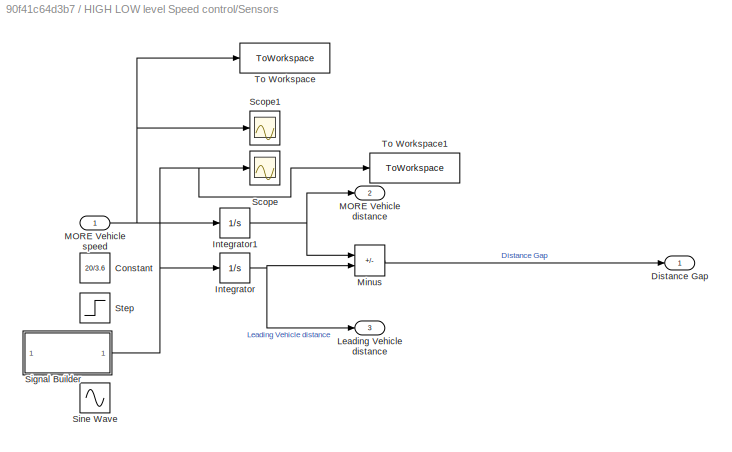
BLOCK [SubSystem] HIGH LOW level Speed control/Sensors
BLOCK [Constant] HIGH LOW level Speed control/Sensors/Constant
  Value = 20/3.6
BLOCK [Outport] HIGH LOW level Speed control/Sensors/Distance Gap
BLOCK [Integrator] HIGH LOW level Speed control/Sensors/Integrator
  InitialCondition = 100
BLOCK [Integrator] HIGH LOW level Speed control/Sensors/Integrator1
BLOCK [Outport] HIGH LOW level Speed control/Sensors/Leading Vehicle distance
  Port = 3
BLOCK [Outport] HIGH LOW level Speed control/Sensors/MORE Vehicle distance
  Port = 2
BLOCK [Inport] HIGH LOW level Speed control/Sensors/MORE Vehicle speed
BLOCK [Sum] HIGH LOW level Speed control/Sensors/Minus
  IconShape = rectangular
  Inputs = -+
BLOCK [Scope] HIGH LOW level Speed control/Sensors/Scope
  Floating = off
  NumInputPorts = 1
  ScopeSpecificationString = Simulink.scopes.TimeScopeBlockCfg('CurrentConfiguration', extmgr.ConfigurationSet(extmgr.Configuration('Core','General UI',true),extmgr.Configuration('Core','Source UI',true),extmgr.Configuration('Sources','WiredSimulink',true,'DataLoggingVariableName','Speed','DataLoggingSaveFormat','Array'),extmgr.Configuration('Visuals','Time Domain',true,'SerializedDisplays',{struct('MinYLimReal','5.55555','Ma...<+1435ch>
BLOCK [Scope] HIGH LOW level Speed control/Sensors/Scope1
  Floating = off
  NumInputPorts = 1
  ScopeSpecificationString = Simulink.scopes.TimeScopeBlockCfg('CurrentConfiguration', extmgr.ConfigurationSet(extmgr.Configuration('Core','General UI',true),extmgr.Configuration('Core','Source UI',true),extmgr.Configuration('Sources','WiredSimulink',true,'DataLoggingVariableName','SpeedEgo','DataLoggingSaveFormat','Array'),extmgr.Configuration('Visuals','Time Domain',true,'SerializedDisplays',{struct('MinYLimReal','5.20918',...<+1405ch>
BLOCK [SubSystem] HIGH LOW level Speed control/Sensors/Signal Builder
  ClipboardFcn = sigbuilder_block('clipboard');
  CloseFcn = sigbuilder_block('close');
  ContinueFcn = sigbuilder_block('continue');
  CopyFcn = sigbuilder_block('copy');
  DeleteFcn = sigbuilder_block('delete');
  LoadFcn = sigbuilder_block('load');
  MaskHideContents = on
  ModelCloseFcn = sigbuilder_block('modelClose');
  NameChangeFcn = sigbuilder_block('namechange');
  OpenFcn = sigbuilder_block('open',[446.4 127.8 550.8 400.2 ]);
  PauseFcn = sigbuilder_block('pause');
  PreSaveFcn = sigbuilder_block('preSave');
  StartFcn = sigbuilder_block('start');
  StopFcn = sigbuilder_block('stop');
  Tag = STV Subsys
BLOCK [Demux] HIGH LOW level Speed control/Sensors/Signal Builder/Demux
  DisplayOption = none
  Outputs = 1
  Tag = STV Demux
BLOCK [FromWorkspace] HIGH LOW level Speed control/Sensors/Signal Builder/FromWs
  Tag = STV FromWs
  VariableName = tuvar
BLOCK [Outport] HIGH LOW level Speed control/Sensors/Signal Builder/Signal 1
  Tag = STV Outport
BLOCK [Sin] HIGH LOW level Speed control/Sensors/Sine Wave
  Amplitude = 3
  Bias = 15/3.6
  Frequency = 0.3
  SampleTime = 0
BLOCK [Step] HIGH LOW level Speed control/Sensors/Step
  After = 10/3.6
  Before = 20/3.6
  SampleTime = 0
  Time = 70
BLOCK [ToWorkspace] HIGH LOW level Speed control/Sensors/To Workspace
  FixptAsFi = on
  MaxDataPoints = inf
  SampleTime = -1
  Save2DSignal = 2-D array (concatenate along first dimension)
  VariableName = ego_speed
BLOCK [ToWorkspace] HIGH LOW level Speed control/Sensors/To Workspace1
  FixptAsFi = on
  MaxDataPoints = inf
  SampleTime = -1
  Save2DSignal = 2-D array (concatenate along first dimension)
  VariableName = lead_speed
BLOCK [Gain] HIGH LOW level Speed control/m//s//s to G
  Gain = 1/9.81
BLOCK [SubSystem] HIGH LOW level acceleration control
  Commented = on
BLOCK [SubSystem] HIGH LOW level acceleration control/3D Sim
  Commented = on
BLOCK [Constant] HIGH LOW level acceleration control/3D Sim/Constant1
  Value = 0
BLOCK [Constant] HIGH LOW level acceleration control/3D Sim/Constant2
  Value = 0
BLOCK [Inport] HIGH LOW level acceleration control/3D Sim/Leading Vehicle distance
  Port = 2
BLOCK [Inport] HIGH LOW level acceleration control/3D Sim/MORE Vehicle Distance
BLOCK [Reference] HIGH LOW level acceleration control/3D Sim/Simulation 3D Scene Configuration  REF=sim3dlib/Simulation 3D Scene Configuration
  Priority = 0
  SourceBlock = sim3dlib/Simulation 3D Scene Configuration
  SourceType = Simulation 3D Scene Configuration
BLOCK [Reference] HIGH LOW level acceleration control/3D Sim/Simulation 3D Vehicle with Ground Following  REF=sim3dautolib/Simulation 3D Vehicle with Ground Following
  Priority = -1
  SourceBlock = sim3dautolib/Simulation 3D Vehicle with Ground Following
  SourceType = Simulation 3D Vehicle with Ground Following
BLOCK [Reference] HIGH LOW level acceleration control/3D Sim/Simulation 3D Vehicle with Ground Following1  REF=sim3dautolib/Simulation 3D Vehicle with Ground Following
  Priority = -1
  SourceBlock = sim3dautolib/Simulation 3D Vehicle with Ground Following
  SourceType = Simulation 3D Vehicle with Ground Following
BLOCK [Derivative] HIGH LOW level acceleration control/Derivative
BLOCK [SubSystem] HIGH LOW level acceleration control/Model And Control
BLOCK [Inport] HIGH LOW level acceleration control/Model And Control/Distance Gap
  Port = 2
BLOCK [SubSystem] HIGH LOW level acceleration control/Model And Control/Distance control
BLOCK [Outport] HIGH LOW level acceleration control/Model And Control/Distance control/Acceleration setpoint
BLOCK [Sum] HIGH LOW level acceleration control/Model And Control/Distance control/Add
  IconShape = rectangular
BLOCK [Constant] HIGH LOW level acceleration control/Model And Control/Distance control/Constant
  Value = 0
BLOCK [Derivative] HIGH LOW level acceleration control/Model And Control/Distance control/Derivative
BLOCK [Inport] HIGH LOW level acceleration control/Model And Control/Distance control/Distance gap
  Port = 3
BLOCK [Inport] HIGH LOW level acceleration control/Model And Control/Distance control/Distance setpoint
  Port = 2
BLOCK [Gain] HIGH LOW level acceleration control/Model And Control/Distance control/Gain
BLOCK [Reference] HIGH LOW level acceleration control/Model And Control/Distance control/PID Controller  REF=slpidlib/PID Controller
  SourceBlock = slpidlib/PID Controller
  SourceType = PID 1dof
BLOCK [Inport] HIGH LOW level acceleration control/Model And Control/Distance control/PID Tracking
  Port = 4
BLOCK [Scope] HIGH LOW level acceleration control/Model And Control/Distance control/Scope
  Floating = off
  NumInputPorts = 1
  ScopeSpecificationString = Simulink.scopes.TimeScopeBlockCfg('CurrentConfiguration', extmgr.ConfigurationSet(extmgr.Configuration('Core','General UI',true),extmgr.Configuration('Core','Source UI',true),extmgr.Configuration('Sources','WiredSimulink',true,'DataLoggingVariableName','ScopeData1'),extmgr.Configuration('Visuals','Time Domain',true,'SerializedDisplays',{struct('MinYLimReal','3.65614','MaxYLimReal','8.85302','YLabe...<+1423ch>
BLOCK [Sum] HIGH LOW level acceleration control/Model And Control/Distance control/Sum1
  Inputs = |+-
BLOCK [Inport] HIGH LOW level acceleration control/Model And Control/Distance control/Upper limit
BLOCK [Outport] HIGH LOW level acceleration control/Model And Control/MORE Vehicle Speed
BLOCK [Inport] HIGH LOW level acceleration control/Model And Control/Reference acc.
BLOCK [Scope] HIGH LOW level acceleration control/Model And Control/Scope
  Floating = off
  NumInputPorts = 1
  ScopeSpecificationString = Simulink.scopes.TimeScopeBlockCfg('CurrentConfiguration', extmgr.ConfigurationSet(extmgr.Configuration('Core','General UI',true),extmgr.Configuration('Core','Source UI',true),extmgr.Configuration('Sources','WiredSimulink',true,'DataLoggingVariableName','ScopeData6'),extmgr.Configuration('Visuals','Time Domain',true,'SerializedDisplays',{struct('MinYLimReal','5.6175','MaxYLimReal','142.27876','YLab...<+1400ch>
BLOCK [SubSystem] HIGH LOW level acceleration control/Model And Control/Speed Feedback Control
BLOCK [Saturate] HIGH LOW level acceleration control/Model And Control/Speed Feedback Control/-5000 -5000 N1
  LowerLimit = -5000
  UpperLimit = 5000
BLOCK [Inport] HIGH LOW level acceleration control/Model And Control/Speed Feedback Control/Acceleration
  Port = 2
BLOCK [Sum] HIGH LOW level acceleration control/Model And Control/Speed Feedback Control/Add
  IconShape = rectangular
BLOCK [Outport] HIGH LOW level acceleration control/Model And Control/Speed Feedback Control/Control effort
BLOCK [SubSystem] HIGH LOW level acceleration control/Model And Control/Speed Feedback Control/Feed Forward
BLOCK [Gain] HIGH LOW level acceleration control/Model And Control/Speed Feedback Control/Feed Forward/Gain
BLOCK [Outport] HIGH LOW level acceleration control/Model And Control/Speed Feedback Control/Feed Forward/Out1
BLOCK [Inport] HIGH LOW level acceleration control/Model And Control/Speed Feedback Control/Feed Forward/desired speed1
BLOCK [Reference] HIGH LOW level acceleration control/Model And Control/Speed Feedback Control/PID Controller  REF=slpidlib/PID Controller
  SourceBlock = slpidlib/PID Controller
  SourceType = PID 1dof
BLOCK [Inport] HIGH LOW level acceleration control/Model And Control/Speed Feedback Control/Reference acc.
BLOCK [Scope] HIGH LOW level acceleration control/Model And Control/Speed Feedback Control/Scope
  Floating = off
  NumInputPorts = 3
  ScopeSpecificationString = Simulink.scopes.TimeScopeBlockCfg('CurrentConfiguration', extmgr.ConfigurationSet(extmgr.Configuration('Core','General UI',true),extmgr.Configuration('Core','Source UI',true),extmgr.Configuration('Sources','WiredSimulink',true,'DataLoggingVariableName','ScopeData1'),extmgr.Configuration('Visuals','Time Domain',true,'SerializedDisplays',{struct('MinYLimReal','-2400.52765','MaxYLimReal','917.67348',...<+1446ch>
BLOCK [Sum] HIGH LOW level acceleration control/Model And Control/Speed Feedback Control/Sum1
  Inputs = |+-
BLOCK [Switch] HIGH LOW level acceleration control/Model And Control/Switch
  Criteria = u2 > Threshold
  InputSameDT = off
  SaturateOnIntegerOverflow = off
BLOCK [SubSystem] HIGH LOW level acceleration control/Model And Control/Switcher
BLOCK [Logic] HIGH LOW level acceleration control/Model And Control/Switcher/AND
  AllPortsSameDT = off
  IconShape = distinctive
  OutDataTypeStr = boolean
BLOCK [Inport] HIGH LOW level acceleration control/Model And Control/Switcher/Desired Distance
  Port = 2
BLOCK [Gain] HIGH LOW level acceleration control/Model And Control/Switcher/Enter margin
  Gain = 3
BLOCK [Gain] HIGH LOW level acceleration control/Model And Control/Switcher/Exit margin
  Gain = 4
BLOCK [Inport] HIGH LOW level acceleration control/Model And Control/Switcher/Gap
BLOCK [Reference] HIGH LOW level acceleration control/Model And Control/Switcher/IsZero  REF=simulink/Logic and Bit
Operations/Compare
To Zero
  SourceBlock = simulink/Logic and Bit\nOperations/Compare\nTo Zero
  SourceType = Compare To Zero
BLOCK [Memory] HIGH LOW level acceleration control/Model And Control/Switcher/Memory
BLOCK [Logic] HIGH LOW level acceleration control/Model And Control/Switcher/NAND
  AllPortsSameDT = off
  IconShape = distinctive
  Operator = NAND
  OutDataTypeStr = boolean
BLOCK [Outport] HIGH LOW level acceleration control/Model And Control/Switcher/Output
BLOCK [RelationalOperator] HIGH LOW level acceleration control/Model And Control/Switcher/Relational Operator
  InputSameDT = off
  OutDataTypeStr = boolean
  RndMeth = Simplest
BLOCK [RelationalOperator] HIGH LOW level acceleration control/Model And Control/Switcher/Relational Operator1
  InputSameDT = off
  Operator = <=
  OutDataTypeStr = boolean
  RndMeth = Simplest
BLOCK [Scope] HIGH LOW level acceleration control/Model And Control/Switcher/Scope
  Floating = off
  NumInputPorts = 4
  ScopeSpecificationString = Simulink.scopes.TimeScopeBlockCfg('CurrentConfiguration', extmgr.ConfigurationSet(extmgr.Configuration('Core','General UI',true),extmgr.Configuration('Core','Source UI',true),extmgr.Configuration('Sources','WiredSimulink',true,'DataLoggingVariableName','ScopeData5'),extmgr.Configuration('Visuals','Time Domain',true,'SerializedDisplays',{struct('MinYLimReal','-16.05436','MaxYLimReal','144.48922','Y...<+1479ch>
BLOCK [Reference] HIGH LOW level acceleration control/Model And Control/Transfer Fcn (with initial outputs)  REF=simulink_extras/Additional
Linear/Transfer Fcn
(with initial outputs)
  SourceBlock = simulink_extras/Additional\nLinear/Transfer Fcn\n(with initial outputs)
  SourceType = Transfer Function with Initial Outputs
BLOCK [Constant] HIGH LOW level acceleration control/Model And Control/d_d
  Value = 20
BLOCK [Constant] HIGH LOW level acceleration control/Model And Control/v_d
  Value = 30/3.6
BLOCK [Scope] HIGH LOW level acceleration control/Scope1
  Floating = off
  NumInputPorts = 1
  ScopeSpecificationString = Simulink.scopes.TimeScopeBlockCfg('CurrentConfiguration', extmgr.ConfigurationSet(extmgr.Configuration('Core','General UI',true),extmgr.Configuration('Core','Source UI',true),extmgr.Configuration('Sources','WiredSimulink',true,'DataLoggingVariableName','ScopeData2'),extmgr.Configuration('Visuals','Time Domain',true,'SerializedDisplays',{struct('MinYLimReal','5.62952','MaxYLimReal','8.63382','YLabe...<+1388ch>
BLOCK [Scope] HIGH LOW level acceleration control/Scope2
  Floating = off
  NumInputPorts = 1
  ScopeSpecificationString = Simulink.scopes.TimeScopeBlockCfg('CurrentConfiguration', extmgr.ConfigurationSet(extmgr.Configuration('Core','General UI',true),extmgr.Configuration('Core','Source UI',true),extmgr.Configuration('Sources','WiredSimulink',true,'DataLoggingVariableName','ScopeData7'),extmgr.Configuration('Visuals','Time Domain',true,'SerializedDisplays',{struct('MinYLimReal','-0.2561','MaxYLimReal','0.04762','YLabe...<+1359ch>
BLOCK [SubSystem] HIGH LOW level acceleration control/Sensors
BLOCK [Constant] HIGH LOW level acceleration control/Sensors/Constant
  Value = 20/3.6
BLOCK [Outport] HIGH LOW level acceleration control/Sensors/Distance Gap
BLOCK [Integrator] HIGH LOW level acceleration control/Sensors/Integrator
  InitialCondition = 100
BLOCK [Integrator] HIGH LOW level acceleration control/Sensors/Integrator1
BLOCK [Outport] HIGH LOW level acceleration control/Sensors/Leading Vehicle distance
  Port = 3
BLOCK [Outport] HIGH LOW level acceleration control/Sensors/MORE Vehicle distance
  Port = 2
BLOCK [Inport] HIGH LOW level acceleration control/Sensors/MORE Vehicle speed
BLOCK [Sum] HIGH LOW level acceleration control/Sensors/Minus
  IconShape = rectangular
  Inputs = -+
BLOCK [SubSystem] HIGH LOW level acceleration control/Sensors/Signal Builder
  ClipboardFcn = sigbuilder_block('clipboard');
  CloseFcn = sigbuilder_block('close');
  ContinueFcn = sigbuilder_block('continue');
  CopyFcn = sigbuilder_block('copy');
  DeleteFcn = sigbuilder_block('delete');
  LoadFcn = sigbuilder_block('load');
  MaskHideContents = on
  ModelCloseFcn = sigbuilder_block('modelClose');
  NameChangeFcn = sigbuilder_block('namechange');
  OpenFcn = sigbuilder_block('open',[446.4 127.8 550.8 400.2 ]);
  PauseFcn = sigbuilder_block('pause');
  PreSaveFcn = sigbuilder_block('preSave');
  StartFcn = sigbuilder_block('start');
  StopFcn = sigbuilder_block('stop');
  Tag = STV Subsys
BLOCK [Demux] HIGH LOW level acceleration control/Sensors/Signal Builder/Demux
  DisplayOption = none
  Outputs = 1
  Tag = STV Demux
BLOCK [FromWorkspace] HIGH LOW level acceleration control/Sensors/Signal Builder/FromWs
  Tag = STV FromWs
  VariableName = tuvar
BLOCK [Outport] HIGH LOW level acceleration control/Sensors/Signal Builder/Signal 1
  Tag = STV Outport
BLOCK [Gain] HIGH LOW level acceleration control/m//s//s to G
  Gain = 1/9.81
BLOCK [SubSystem] Switch Force Control
  Commented = on
BLOCK [Constant] Switch Force Control/Constant
  Value = 15/3.6
BLOCK [SubSystem] Switch Force Control/Distance control
BLOCK [Constant] Switch Force Control/Distance control/Constant
BLOCK [Outport] Switch Force Control/Distance control/Control effort
BLOCK [Inport] Switch Force Control/Distance control/Distance setpoint
  Port = 2
BLOCK [Gain] Switch Force Control/Distance control/Gain
  Gain = -1
BLOCK [Reference] Switch Force Control/Distance control/PID Controller  REF=slpidlib/PID Controller
  SourceBlock = slpidlib/PID Controller
  SourceType = PID 1dof
BLOCK [Inport] Switch Force Control/Distance control/PID Tracking
  Port = 4
BLOCK [Inport] Switch Force Control/Distance control/Reference distance
  Port = 3
BLOCK [Scope] Switch Force Control/Distance control/Scope
  Floating = off
  NumInputPorts = 1
  ScopeSpecificationString = Simulink.scopes.TimeScopeBlockCfg('CurrentConfiguration', extmgr.ConfigurationSet(extmgr.Configuration('Core','General UI',true),extmgr.Configuration('Core','Source UI',true),extmgr.Configuration('Sources','WiredSimulink',true,'DataLoggingVariableName','ScopeData1'),extmgr.Configuration('Visuals','Time Domain',true,'SerializedDisplays',{struct('MinYLimReal','-3965.46318','MaxYLimReal','5996.16258'...<+1418ch>
BLOCK [Scope] Switch Force Control/Distance control/Scope1
  Floating = off
  NumInputPorts = 1
  ScopeSpecificationString = Simulink.scopes.TimeScopeBlockCfg('CurrentConfiguration', extmgr.ConfigurationSet(extmgr.Configuration('Core','General UI',true),extmgr.Configuration('Core','Source UI',true),extmgr.Configuration('Sources','WiredSimulink',true,'DataLoggingVariableName','ScopeData4'),extmgr.Configuration('Visuals','Time Domain',true,'SerializedDisplays',{struct('MinYLimReal','-101.33049','MaxYLimReal','11.97439','Y...<+1405ch>
BLOCK [Sum] Switch Force Control/Distance control/Sum1
  Inputs = |+-
BLOCK [Inport] Switch Force Control/Distance control/reset
BLOCK [Integrator] Switch Force Control/Integrator
  InitialCondition = 100
BLOCK [Integrator] Switch Force Control/Integrator1
BLOCK [Sum] Switch Force Control/Minus
  IconShape = rectangular
  Inputs = -+
BLOCK [Scope] Switch Force Control/Scope
  Floating = off
  NumInputPorts = 1
  ScopeSpecificationString = Simulink.scopes.TimeScopeBlockCfg('CurrentConfiguration', extmgr.ConfigurationSet(extmgr.Configuration('Core','General UI',true),extmgr.Configuration('Core','Source UI',true),extmgr.Configuration('Sources','WiredSimulink',true,'DataLoggingVariableName','ScopeData1'),extmgr.Configuration('Visuals','Time Domain',true,'SerializedDisplays',{struct('MinYLimReal','-0.125','MaxYLimReal','1.125','YLabelRe...<+1421ch>
BLOCK [Scope] Switch Force Control/Scope1
  Floating = off
  NumInputPorts = 1
  ScopeSpecificationString = Simulink.scopes.TimeScopeBlockCfg('CurrentConfiguration', extmgr.ConfigurationSet(extmgr.Configuration('Core','General UI',true),extmgr.Configuration('Core','Source UI',true),extmgr.Configuration('Sources','WiredSimulink',true,'DataLoggingVariableName','ScopeData2'),extmgr.Configuration('Visuals','Time Domain',true,'SerializedDisplays',{struct('MinYLimReal','2.38303','MaxYLimReal','16.8881','YLabe...<+1408ch>
BLOCK [Scope] Switch Force Control/Scope2
  Floating = off
  NumInputPorts = 1
  ScopeSpecificationString = Simulink.scopes.TimeScopeBlockCfg('CurrentConfiguration', extmgr.ConfigurationSet(extmgr.Configuration('Core','General UI',true),extmgr.Configuration('Core','Source UI',true),extmgr.Configuration('Sources','WiredSimulink',true,'DataLoggingVariableName','ScopeData3'),extmgr.Configuration('Visuals','Time Domain',true,'SerializedDisplays',{struct('MinYLimReal','-1.97439','MaxYLimReal','111.33049','YL...<+1400ch>
BLOCK [SubSystem] Switch Force Control/Speed Feedback Control
BLOCK [Saturate] Switch Force Control/Speed Feedback Control/-5000 -5000 N1
  LowerLimit = -5000
  UpperLimit = 5000
BLOCK [Sum] Switch Force Control/Speed Feedback Control/Add
  IconShape = rectangular
BLOCK [Outport] Switch Force Control/Speed Feedback Control/Control effort
BLOCK [EnablePort] Switch Force Control/Speed Feedback Control/Enable
  StatesWhenEnabling = reset
BLOCK [SubSystem] Switch Force Control/Speed Feedback Control/F(s)
BLOCK [Sum] Switch Force Control/Speed Feedback Control/F(s)/Add
  IconShape = rectangular
BLOCK [Derivative] Switch Force Control/Speed Feedback Control/F(s)/Derivative
BLOCK [Gain] Switch Force Control/Speed Feedback Control/F(s)/Gain
  Gain = b
BLOCK [Gain] Switch Force Control/Speed Feedback Control/F(s)/Gain1
  Gain = m
BLOCK [Outport] Switch Force Control/Speed Feedback Control/F(s)/Out1
BLOCK [Inport] Switch Force Control/Speed Feedback Control/F(s)/desired speed1
BLOCK [Reference] Switch Force Control/Speed Feedback Control/PID Controller  REF=slpidlib/PID Controller
  SourceBlock = slpidlib/PID Controller
  SourceType = PID 1dof
BLOCK [Inport] Switch Force Control/Speed Feedback Control/Reference speed
  Port = 2
BLOCK [Scope] Switch Force Control/Speed Feedback Control/Scope
  Floating = off
  NumInputPorts = 3
  ScopeSpecificationString = Simulink.scopes.TimeScopeBlockCfg('CurrentConfiguration', extmgr.ConfigurationSet(extmgr.Configuration('Core','General UI',true),extmgr.Configuration('Core','Source UI',true),extmgr.Configuration('Sources','WiredSimulink',true,'DataLoggingVariableName','ScopeData1'),extmgr.Configuration('Visuals','Time Domain',true,'SerializedDisplays',{struct('MinYLimReal','-52.08333','MaxYLimReal','468.75','YLab...<+1424ch>
BLOCK [Inport] Switch Force Control/Speed Feedback Control/Speed PID tracking
BLOCK [Inport] Switch Force Control/Speed Feedback Control/Speed setpoint
  Port = 3
BLOCK [Sum] Switch Force Control/Speed Feedback Control/Sum1
  Inputs = |+-
BLOCK [Switch] Switch Force Control/Switch
  Criteria = u2 > Threshold
  InputSameDT = off
  SaturateOnIntegerOverflow = off
BLOCK [SubSystem] Switch Force Control/Switcher
BLOCK [Logic] Switch Force Control/Switcher/AND
  AllPortsSameDT = off
  IconShape = distinctive
  OutDataTypeStr = boolean
BLOCK [Inport] Switch Force Control/Switcher/Desired Distance
  Port = 2
BLOCK [Gain] Switch Force Control/Switcher/Enter margin
  Gain = 5
BLOCK [Gain] Switch Force Control/Switcher/Exit margin
  Gain = 7
BLOCK [Inport] Switch Force Control/Switcher/Gap
BLOCK [Reference] Switch Force Control/Switcher/IsZero  REF=simulink/Logic and Bit
Operations/Compare
To Zero
  SourceBlock = simulink/Logic and Bit\nOperations/Compare\nTo Zero
  SourceType = Compare To Zero
BLOCK [Memory] Switch Force Control/Switcher/Memory
BLOCK [Logic] Switch Force Control/Switcher/NAND
  AllPortsSameDT = off
  IconShape = distinctive
  Operator = NAND
  OutDataTypeStr = boolean
BLOCK [Outport] Switch Force Control/Switcher/Output
BLOCK [RelationalOperator] Switch Force Control/Switcher/Relational Operator
  InputSameDT = off
  OutDataTypeStr = boolean
  RndMeth = Simplest
BLOCK [RelationalOperator] Switch Force Control/Switcher/Relational Operator1
  InputSameDT = off
  Operator = <=
  OutDataTypeStr = boolean
  RndMeth = Simplest
BLOCK [Scope] Switch Force Control/Switcher/Scope
  Floating = off
  NumInputPorts = 4
  ScopeSpecificationString = Simulink.scopes.TimeScopeBlockCfg('CurrentConfiguration', extmgr.ConfigurationSet(extmgr.Configuration('Core','General UI',true),extmgr.Configuration('Core','Source UI',true),extmgr.Configuration('Sources','WiredSimulink',true,'DataLoggingVariableName','ScopeData5'),extmgr.Configuration('Visuals','Time Domain',true,'SerializedDisplays',{struct('MinYLimReal','-12.5','MaxYLimReal','112.5','YLabelRea...<+1454ch>
BLOCK [Reference] Switch Force Control/Transfer Fcn (with initial outputs)  REF=simulink_extras/Additional
Linear/Transfer Fcn
(with initial outputs)
  SourceBlock = simulink_extras/Additional\nLinear/Transfer Fcn\n(with initial outputs)
  SourceType = Transfer Function with Initial Outputs
BLOCK [Constant] Switch Force Control/d_d
  Value = 10
BLOCK [Constant] Switch Force Control/v_d
  Value = 30/3.6
LINE ACC Multi MPC Speed/Constant1:1 -> ACC Multi MPC Speed/Mux:2
NET ACC Multi MPC Speed/Constant2:1 -> ACC Multi MPC Speed/Mux:1, ACC Multi MPC Speed/Switcher:2
NET ACC Multi MPC Speed/Sensors/Constant:1 -> ACC Multi MPC Speed/Sensors/Integrator:1, ACC Multi MPC Speed/Sensors/Minus1:2
NET ACC Multi MPC Speed/Sensors/Integrator1:1 -> ACC Multi MPC Speed/Sensors/MORE Vehicle distance:1, ACC Multi MPC Speed/Sensors/Minus:1
LINE ACC Multi MPC Speed/Sensors/Integrator:1 -> ACC Multi MPC Speed/Sensors/Minus:2
NET ACC Multi MPC Speed/Sensors/MORE Vehicle speed:1 -> ACC Multi MPC Speed/Sensors/Integrator1:1, ACC Multi MPC Speed/Sensors/Minus1:1
LINE ACC Multi MPC Speed/Sensors/Minus1:1 -> ACC Multi MPC Speed/Sensors/Relative speed:1
LINE ACC Multi MPC Speed/Sensors/Minus:1 -> ACC Multi MPC Speed/Sensors/Distance Gap:1
NET ACC Multi MPC Speed/Sensors:1 -> ACC Multi MPC Speed/Mux1:1, ACC Multi MPC Speed/Scope1:1, ACC Multi MPC Speed/Switcher:1
NET ACC Multi MPC Speed/Speed Feedback Control/-5000 -5000 N1:1 -> ACC Multi MPC Speed/Speed Feedback Control/Control effort:1, ACC Multi MPC Speed/Speed Feedback Control/Scope:3
LINE ACC Multi MPC Speed/Speed Feedback Control/Add:1 -> ACC Multi MPC Speed/Speed Feedback Control/-5000 -5000 N1:1
LINE ACC Multi MPC Speed/Speed Feedback Control/Feed Forward/Add:1 -> ACC Multi MPC Speed/Speed Feedback Control/Feed Forward/Out1:1
LINE ACC Multi MPC Speed/Speed Feedback Control/Feed Forward/Derivative:1 -> ACC Multi MPC Speed/Speed Feedback Control/Feed Forward/Gain1:1
LINE ACC Multi MPC Speed/Speed Feedback Control/Feed Forward/Gain1:1 -> ACC Multi MPC Speed/Speed Feedback Control/Feed Forward/Add:1
LINE ACC Multi MPC Speed/Speed Feedback Control/Feed Forward/Gain:1 -> ACC Multi MPC Speed/Speed Feedback Control/Feed Forward/Add:2
NET ACC Multi MPC Speed/Speed Feedback Control/Feed Forward/desired speed1:1 -> ACC Multi MPC Speed/Speed Feedback Control/Feed Forward/Derivative:1, ACC Multi MPC Speed/Speed Feedback Control/Feed Forward/Gain:1
LINE ACC Multi MPC Speed/Speed Feedback Control/Feed Forward:1 -> ACC Multi MPC Speed/Speed Feedback Control/Add:1
NET ACC Multi MPC Speed/Speed Feedback Control/PID Controller:1 -> ACC Multi MPC Speed/Speed Feedback Control/Add:2, ACC Multi MPC Speed/Speed Feedback Control/Scope:2
LINE ACC Multi MPC Speed/Speed Feedback Control/Reference speed:1 -> ACC Multi MPC Speed/Speed Feedback Control/Sum1:2
NET ACC Multi MPC Speed/Speed Feedback Control/Speed:1 -> ACC Multi MPC Speed/Speed Feedback Control/Feed Forward:1, ACC Multi MPC Speed/Speed Feedback Control/Scope:1, ACC Multi MPC Speed/Speed Feedback Control/Sum1:1
LINE ACC Multi MPC Speed/Speed Feedback Control/Sum1:1 -> ACC Multi MPC Speed/Speed Feedback Control/PID Controller:1
LINE ACC Multi MPC Speed/Speed Feedback Control:1 -> ACC Multi MPC Speed/Transfer Fcn (with initial outputs):1
NET ACC Multi MPC Speed/Switcher/AND:1 -> ACC Multi MPC Speed/Switcher/Add:1, ACC Multi MPC Speed/Switcher/Memory:1, ACC Multi MPC Speed/Switcher/Scope:4
LINE ACC Multi MPC Speed/Switcher/Add:1 -> ACC Multi MPC Speed/Switcher/Output:1
LINE ACC Multi MPC Speed/Switcher/Constant:1 -> ACC Multi MPC Speed/Switcher/Add:2
NET ACC Multi MPC Speed/Switcher/Desired Distance:1 -> ACC Multi MPC Speed/Switcher/Enter margin:1, ACC Multi MPC Speed/Switcher/Exit margin:1
LINE ACC Multi MPC Speed/Switcher/Enter margin:1 -> ACC Multi MPC Speed/Switcher/Relational Operator:2
LINE ACC Multi MPC Speed/Switcher/Exit margin:1 -> ACC Multi MPC Speed/Switcher/Relational Operator1:2
NET ACC Multi MPC Speed/Switcher/Gap:1 -> ACC Multi MPC Speed/Switcher/Relational Operator1:1, ACC Multi MPC Speed/Switcher/Relational Operator:1, ACC Multi MPC Speed/Switcher/Scope:1
LINE ACC Multi MPC Speed/Switcher/IsZero:1 -> ACC Multi MPC Speed/Switcher/NAND:2
LINE ACC Multi MPC Speed/Switcher/Memory:1 -> ACC Multi MPC Speed/Switcher/IsZero:1
LINE ACC Multi MPC Speed/Switcher/NAND:1 -> ACC Multi MPC Speed/Switcher/AND:2
NET ACC Multi MPC Speed/Switcher/Relational Operator1:1 -> ACC Multi MPC Speed/Switcher/NAND:1, ACC Multi MPC Speed/Switcher/Scope:3
NET ACC Multi MPC Speed/Switcher/Relational Operator:1 -> ACC Multi MPC Speed/Switcher/AND:1, ACC Multi MPC Speed/Switcher/Scope:2
NET ACC Multi MPC Speed/Transfer Fcn (with initial outputs):1 -> ACC Multi MPC Speed/Mux1:2, ACC Multi MPC Speed/Scope:1, ACC Multi MPC Speed/Sensors:1, ACC Multi MPC Speed/Speed Feedback Control:1
NET ACC Multi MPC Speed1/Constant:1 -> ACC Multi MPC Speed1/MPC Speed:2, ACC Multi MPC Speed1/Switcher:2
NET ACC Multi MPC Speed1/MPC Speed:1 -> ACC Multi MPC Speed1/Scope2:1, ACC Multi MPC Speed1/Switch:3
NET ACC Multi MPC Speed1/Sensors/Integrator1:1 -> ACC Multi MPC Speed1/Sensors/MORE Vehicle distance:1, ACC Multi MPC Speed1/Sensors/Minus:1
NET ACC Multi MPC Speed1/Sensors/Integrator:1 -> ACC Multi MPC Speed1/Sensors/Leading Vehicle distance:1, ACC Multi MPC Speed1/Sensors/Minus:2
LINE ACC Multi MPC Speed1/Sensors/MORE Vehicle speed:1 -> ACC Multi MPC Speed1/Sensors/Integrator1:1
LINE ACC Multi MPC Speed1/Sensors/Minus:1 -> ACC Multi MPC Speed1/Sensors/Distance Gap:1
LINE ACC Multi MPC Speed1/Sensors/Signal Builder:1 -> ACC Multi MPC Speed1/Sensors/Integrator:1
NET ACC Multi MPC Speed1/Sensors:1 -> ACC Multi MPC Speed1/MPC Speed:1, ACC Multi MPC Speed1/Scope1:1, ACC Multi MPC Speed1/Switcher:1
NET ACC Multi MPC Speed1/Speed Feedback Control/-5000 -5000 N1:1 -> ACC Multi MPC Speed1/Speed Feedback Control/Control effort:1, ACC Multi MPC Speed1/Speed Feedback Control/Scope:3
LINE ACC Multi MPC Speed1/Speed Feedback Control/Add:1 -> ACC Multi MPC Speed1/Speed Feedback Control/-5000 -5000 N1:1
LINE ACC Multi MPC Speed1/Speed Feedback Control/Feed Forward/Add:1 -> ACC Multi MPC Speed1/Speed Feedback Control/Feed Forward/Out1:1
LINE ACC Multi MPC Speed1/Speed Feedback Control/Feed Forward/Derivative:1 -> ACC Multi MPC Speed1/Speed Feedback Control/Feed Forward/Gain1:1
LINE ACC Multi MPC Speed1/Speed Feedback Control/Feed Forward/Gain1:1 -> ACC Multi MPC Speed1/Speed Feedback Control/Feed Forward/Add:1
LINE ACC Multi MPC Speed1/Speed Feedback Control/Feed Forward/Gain:1 -> ACC Multi MPC Speed1/Speed Feedback Control/Feed Forward/Add:2
NET ACC Multi MPC Speed1/Speed Feedback Control/Feed Forward/desired speed1:1 -> ACC Multi MPC Speed1/Speed Feedback Control/Feed Forward/Derivative:1, ACC Multi MPC Speed1/Speed Feedback Control/Feed Forward/Gain:1
NET ACC Multi MPC Speed1/Speed Feedback Control/Feed Forward:1 -> ACC Multi MPC Speed1/Speed Feedback Control/Add:1, ACC Multi MPC Speed1/Speed Feedback Control/Scope:1
NET ACC Multi MPC Speed1/Speed Feedback Control/PID Controller:1 -> ACC Multi MPC Speed1/Speed Feedback Control/Add:2, ACC Multi MPC Speed1/Speed Feedback Control/Scope:2
LINE ACC Multi MPC Speed1/Speed Feedback Control/Reference speed:1 -> ACC Multi MPC Speed1/Speed Feedback Control/Sum1:2
NET ACC Multi MPC Speed1/Speed Feedback Control/Speed setpoint:1 -> ACC Multi MPC Speed1/Speed Feedback Control/Feed Forward:1, ACC Multi MPC Speed1/Speed Feedback Control/Sum1:1
LINE ACC Multi MPC Speed1/Speed Feedback Control/Sum1:1 -> ACC Multi MPC Speed1/Speed Feedback Control/PID Controller:1
LINE ACC Multi MPC Speed1/Speed Feedback Control:1 -> ACC Multi MPC Speed1/Transfer Fcn (with initial outputs):1
LINE ACC Multi MPC Speed1/Switch:1 -> ACC Multi MPC Speed1/Speed Feedback Control:2
NET ACC Multi MPC Speed1/Switcher/AND:1 -> ACC Multi MPC Speed1/Switcher/Memory:1, ACC Multi MPC Speed1/Switcher/Output:1, ACC Multi MPC Speed1/Switcher/Scope:4
NET ACC Multi MPC Speed1/Switcher/Desired Distance:1 -> ACC Multi MPC Speed1/Switcher/Enter margin:1, ACC Multi MPC Speed1/Switcher/Exit margin:1
LINE ACC Multi MPC Speed1/Switcher/Enter margin:1 -> ACC Multi MPC Speed1/Switcher/Relational Operator:2
LINE ACC Multi MPC Speed1/Switcher/Exit margin:1 -> ACC Multi MPC Speed1/Switcher/Relational Operator1:2
NET ACC Multi MPC Speed1/Switcher/Gap:1 -> ACC Multi MPC Speed1/Switcher/Relational Operator1:1, ACC Multi MPC Speed1/Switcher/Relational Operator:1, ACC Multi MPC Speed1/Switcher/Scope:1
LINE ACC Multi MPC Speed1/Switcher/IsZero:1 -> ACC Multi MPC Speed1/Switcher/NAND:2
LINE ACC Multi MPC Speed1/Switcher/Memory:1 -> ACC Multi MPC Speed1/Switcher/IsZero:1
LINE ACC Multi MPC Speed1/Switcher/NAND:1 -> ACC Multi MPC Speed1/Switcher/AND:2
LINE ACC Multi MPC Speed1/Switcher/Relational Operator1:1 -> ACC Multi MPC Speed1/Switcher/NAND:1
LINE ACC Multi MPC Speed1/Switcher/Relational Operator:1 -> ACC Multi MPC Speed1/Switcher/AND:1
NET ACC Multi MPC Speed1/Switcher:1 -> ACC Multi MPC Speed1/MPC Speed:4, ACC Multi MPC Speed1/Switch:2
NET ACC Multi MPC Speed1/Transfer Fcn (with initial outputs):1 -> ACC Multi MPC Speed1/Sensors:1, ACC Multi MPC Speed1/Speed Feedback Control:1
NET ACC Multi MPC Speed1/v_d:1 -> ACC Multi MPC Speed1/MPC Speed:3, ACC Multi MPC Speed1/Switch:1
NET HIGH LOW level Speed control DC Motor/3D Sim/Constant1:1 -> HIGH LOW level Speed control DC Motor/3D Sim/Simulation 3D Vehicle with Ground Following1:2, HIGH LOW level Speed control DC Motor/3D Sim/Simulation 3D Vehicle with Ground Following:2
NET HIGH LOW level Speed control DC Motor/3D Sim/Constant2:1 -> HIGH LOW level Speed control DC Motor/3D Sim/Simulation 3D Vehicle with Ground Following1:3, HIGH LOW level Speed control DC Motor/3D Sim/Simulation 3D Vehicle with Ground Following:3
LINE HIGH LOW level Speed control DC Motor/3D Sim/Leading Vehicle distance:1 -> HIGH LOW level Speed control DC Motor/3D Sim/Simulation 3D Vehicle with Ground Following:1
LINE HIGH LOW level Speed control DC Motor/3D Sim/MORE Vehicle Distance:1 -> HIGH LOW level Speed control DC Motor/3D Sim/Simulation 3D Vehicle with Ground Following1:1
LINE HIGH LOW level Speed control DC Motor/Derivative:1 -> HIGH LOW level Speed control DC Motor/m//s//s to G:1
NET HIGH LOW level Speed control DC Motor/Model And Control/Distance Gap:1 -> HIGH LOW level Speed control DC Motor/Model And Control/Distance control:3, HIGH LOW level Speed control DC Motor/Model And Control/Switcher:1, HIGH LOW level Speed control DC Motor/Model And Control/To Workspace:1
LINE HIGH LOW level Speed control DC Motor/Model And Control/Distance control/Constant:1 -> HIGH LOW level Speed control DC Motor/Model And Control/Distance control/PID Controller:3
LINE HIGH LOW level Speed control DC Motor/Model And Control/Distance control/Distance gap:1 -> HIGH LOW level Speed control DC Motor/Model And Control/Distance control/Sum1:1
LINE HIGH LOW level Speed control DC Motor/Model And Control/Distance control/Distance setpoint:1 -> HIGH LOW level Speed control DC Motor/Model And Control/Distance control/Sum1:2
NET HIGH LOW level Speed control DC Motor/Model And Control/Distance control/PID Controller:1 -> HIGH LOW level Speed control DC Motor/Model And Control/Distance control/Scope:1, HIGH LOW level Speed control DC Motor/Model And Control/Distance control/Speed Setpoint:1
LINE HIGH LOW level Speed control DC Motor/Model And Control/Distance control/PID Tracking:1 -> HIGH LOW level Speed control DC Motor/Model And Control/Distance control/PID Controller:4
NET HIGH LOW level Speed control DC Motor/Model And Control/Distance control/Sum1:1 -> HIGH LOW level Speed control DC Motor/Model And Control/Distance control/PID Controller:1, HIGH LOW level Speed control DC Motor/Model And Control/Distance control/Scope1:1
LINE HIGH LOW level Speed control DC Motor/Model And Control/Distance control/Upper limit:1 -> HIGH LOW level Speed control DC Motor/Model And Control/Distance control/PID Controller:2
LINE HIGH LOW level Speed control DC Motor/Model And Control/Distance control:1 -> HIGH LOW level Speed control DC Motor/Model And Control/Switch:3
LINE HIGH LOW level Speed control DC Motor/Model And Control/Gain1:1 -> HIGH LOW level Speed control DC Motor/Model And Control/Gain:1
LINE HIGH LOW level Speed control DC Motor/Model And Control/Gain:1 -> HIGH LOW level Speed control DC Motor/Model And Control/MORE Vehicle Speed:1
LINE HIGH LOW level Speed control DC Motor/Model And Control/Reference speed:1 -> HIGH LOW level Speed control DC Motor/Model And Control/Speed Feedback Control:1
LINE HIGH LOW level Speed control DC Motor/Model And Control/Speed Feedback Control/Add:1 -> HIGH LOW level Speed control DC Motor/Model And Control/Speed Feedback Control/Saturation:1
LINE HIGH LOW level Speed control DC Motor/Model And Control/Speed Feedback Control/Feed Forward/Add:1 -> HIGH LOW level Speed control DC Motor/Model And Control/Speed Feedback Control/Feed Forward/Divide:1
LINE HIGH LOW level Speed control DC Motor/Model And Control/Speed Feedback Control/Feed Forward/Constant:1 -> HIGH LOW level Speed control DC Motor/Model And Control/Speed Feedback Control/Feed Forward/Divide:2
LINE HIGH LOW level Speed control DC Motor/Model And Control/Speed Feedback Control/Feed Forward/Derivative:1 -> HIGH LOW level Speed control DC Motor/Model And Control/Speed Feedback Control/Feed Forward/Add:1
LINE HIGH LOW level Speed control DC Motor/Model And Control/Speed Feedback Control/Feed Forward/Divide:1 -> HIGH LOW level Speed control DC Motor/Model And Control/Speed Feedback Control/Feed Forward/Out1:1
NET HIGH LOW level Speed control DC Motor/Model And Control/Speed Feedback Control/Feed Forward/Gain1:1 -> HIGH LOW level Speed control DC Motor/Model And Control/Speed Feedback Control/Feed Forward/Derivative:1, HIGH LOW level Speed control DC Motor/Model And Control/Speed Feedback Control/Feed Forward/Gain:1, HIGH LOW level Speed control DC Motor/Model And Control/Speed Feedback Control/Feed Forward/Scope:1
LINE HIGH LOW level Speed control DC Motor/Model And Control/Speed Feedback Control/Feed Forward/Gain:1 -> HIGH LOW level Speed control DC Motor/Model And Control/Speed Feedback Control/Feed Forward/Add:2
LINE HIGH LOW level Speed control DC Motor/Model And Control/Speed Feedback Control/Feed Forward/desired speed1:1 -> HIGH LOW level Speed control DC Motor/Model And Control/Speed Feedback Control/Feed Forward/Gain1:1
NET HIGH LOW level Speed control DC Motor/Model And Control/Speed Feedback Control/Feed Forward:1 -> HIGH LOW level Speed control DC Motor/Model And Control/Speed Feedback Control/Add:1, HIGH LOW level Speed control DC Motor/Model And Control/Speed Feedback Control/Scope:1
NET HIGH LOW level Speed control DC Motor/Model And Control/Speed Feedback Control/PID Controller:1 -> HIGH LOW level Speed control DC Motor/Model And Control/Speed Feedback Control/Add:2, HIGH LOW level Speed control DC Motor/Model And Control/Speed Feedback Control/Scope:2
LINE HIGH LOW level Speed control DC Motor/Model And Control/Speed Feedback Control/Reference speed:1 -> HIGH LOW level Speed control DC Motor/Model And Control/Speed Feedback Control/Sum1:2
NET HIGH LOW level Speed control DC Motor/Model And Control/Speed Feedback Control/Saturation:1 -> HIGH LOW level Speed control DC Motor/Model And Control/Speed Feedback Control/Control effort:1, HIGH LOW level Speed control DC Motor/Model And Control/Speed Feedback Control/Scope:3
NET HIGH LOW level Speed control DC Motor/Model And Control/Speed Feedback Control/Speed setpoint:1 -> HIGH LOW level Speed control DC Motor/Model And Control/Speed Feedback Control/Feed Forward:1, HIGH LOW level Speed control DC Motor/Model And Control/Speed Feedback Control/Sum1:1
LINE HIGH LOW level Speed control DC Motor/Model And Control/Speed Feedback Control/Sum1:1 -> HIGH LOW level Speed control DC Motor/Model And Control/Speed Feedback Control/PID Controller:1
LINE HIGH LOW level Speed control DC Motor/Model And Control/Speed Feedback Control:1 -> HIGH LOW level Speed control DC Motor/Model And Control/Transfer Fcn (with initial outputs):1
NET HIGH LOW level Speed control DC Motor/Model And Control/Switch:1 -> HIGH LOW level Speed control DC Motor/Model And Control/Distance control:4, HIGH LOW level Speed control DC Motor/Model And Control/Speed Feedback Control:2
NET HIGH LOW level Speed control DC Motor/Model And Control/Switcher/AND:1 -> HIGH LOW level Speed control DC Motor/Model And Control/Switcher/CC to ACC switch:1, HIGH LOW level Speed control DC Motor/Model And Control/Switcher/Memory:1, HIGH LOW level Speed control DC Motor/Model And Control/Switcher/Scope:4
NET HIGH LOW level Speed control DC Motor/Model And Control/Switcher/Desired Distance:1 -> HIGH LOW level Speed control DC Motor/Model And Control/Switcher/Enter margin:1, HIGH LOW level Speed control DC Motor/Model And Control/Switcher/Exit margin:1
LINE HIGH LOW level Speed control DC Motor/Model And Control/Switcher/Enter margin:1 -> HIGH LOW level Speed control DC Motor/Model And Control/Switcher/Relational Operator:2
LINE HIGH LOW level Speed control DC Motor/Model And Control/Switcher/Exit margin:1 -> HIGH LOW level Speed control DC Motor/Model And Control/Switcher/Relational Operator1:2
NET HIGH LOW level Speed control DC Motor/Model And Control/Switcher/Gap:1 -> HIGH LOW level Speed control DC Motor/Model And Control/Switcher/Relational Operator1:1, HIGH LOW level Speed control DC Motor/Model And Control/Switcher/Relational Operator:1, HIGH LOW level Speed control DC Motor/Model And Control/Switcher/Scope:1
LINE HIGH LOW level Speed control DC Motor/Model And Control/Switcher/IsZero:1 -> HIGH LOW level Speed control DC Motor/Model And Control/Switcher/NAND:2
LINE HIGH LOW level Speed control DC Motor/Model And Control/Switcher/Memory:1 -> HIGH LOW level Speed control DC Motor/Model And Control/Switcher/IsZero:1
LINE HIGH LOW level Speed control DC Motor/Model And Control/Switcher/NAND:1 -> HIGH LOW level Speed control DC Motor/Model And Control/Switcher/AND:2
NET HIGH LOW level Speed control DC Motor/Model And Control/Switcher/Relational Operator1:1 -> HIGH LOW level Speed control DC Motor/Model And Control/Switcher/NAND:1, HIGH LOW level Speed control DC Motor/Model And Control/Switcher/Scope:3
NET HIGH LOW level Speed control DC Motor/Model And Control/Switcher/Relational Operator:1 -> HIGH LOW level Speed control DC Motor/Model And Control/Switcher/AND:1, HIGH LOW level Speed control DC Motor/Model And Control/Switcher/Scope:2
LINE HIGH LOW level Speed control DC Motor/Model And Control/Switcher:1 -> HIGH LOW level Speed control DC Motor/Model And Control/Switch:2
LINE HIGH LOW level Speed control DC Motor/Model And Control/Transfer Fcn (with initial outputs):1 -> HIGH LOW level Speed control DC Motor/Model And Control/Gain1:1
NET HIGH LOW level Speed control DC Motor/Model And Control/d_d:1 -> HIGH LOW level Speed control DC Motor/Model And Control/Distance control:2, HIGH LOW level Speed control DC Motor/Model And Control/Switcher:2
NET HIGH LOW level Speed control DC Motor/Model And Control/v_d:1 -> HIGH LOW level Speed control DC Motor/Model And Control/Distance control:1, HIGH LOW level Speed control DC Motor/Model And Control/Switch:1
NET HIGH LOW level Speed control DC Motor/Model And Control:1 -> HIGH LOW level Speed control DC Motor/Derivative:1, HIGH LOW level Speed control DC Motor/Model And Control:1, HIGH LOW level Speed control DC Motor/Scope1:1, HIGH LOW level Speed control DC Motor/Sensors:1
NET HIGH LOW level Speed control DC Motor/Sensors/Integrator1:1 -> HIGH LOW level Speed control DC Motor/Sensors/MORE Vehicle distance:1, HIGH LOW level Speed control DC Motor/Sensors/Minus:1
NET HIGH LOW level Speed control DC Motor/Sensors/Integrator:1 -> HIGH LOW level Speed control DC Motor/Sensors/Leading Vehicle distance:1, HIGH LOW level Speed control DC Motor/Sensors/Minus:2
NET HIGH LOW level Speed control DC Motor/Sensors/MORE Vehicle speed:1 -> HIGH LOW level Speed control DC Motor/Sensors/Integrator1:1, HIGH LOW level Speed control DC Motor/Sensors/Scope1:1, HIGH LOW level Speed control DC Motor/Sensors/To Workspace:1
LINE HIGH LOW level Speed control DC Motor/Sensors/Minus:1 -> HIGH LOW level Speed control DC Motor/Sensors/Distance Gap:1
NET HIGH LOW level Speed control DC Motor/Sensors/Signal Builder:1 -> HIGH LOW level Speed control DC Motor/Sensors/Integrator:1, HIGH LOW level Speed control DC Motor/Sensors/Scope:1, HIGH LOW level Speed control DC Motor/Sensors/To Workspace1:1
LINE HIGH LOW level Speed control DC Motor/Sensors:1 -> HIGH LOW level Speed control DC Motor/Model And Control:2
LINE HIGH LOW level Speed control DC Motor/Sensors:2 -> HIGH LOW level Speed control DC Motor/3D Sim:1
LINE HIGH LOW level Speed control DC Motor/Sensors:3 -> HIGH LOW level Speed control DC Motor/3D Sim:2
LINE HIGH LOW level Speed control DC Motor/m//s//s to G:1 -> HIGH LOW level Speed control DC Motor/Scope2:1
NET HIGH LOW level Speed control/3D Sim/Constant1:1 -> HIGH LOW level Speed control/3D Sim/Simulation 3D Vehicle with Ground Following1:2, HIGH LOW level Speed control/3D Sim/Simulation 3D Vehicle with Ground Following:2
NET HIGH LOW level Speed control/3D Sim/Constant2:1 -> HIGH LOW level Speed control/3D Sim/Simulation 3D Vehicle with Ground Following1:3, HIGH LOW level Speed control/3D Sim/Simulation 3D Vehicle with Ground Following:3
LINE HIGH LOW level Speed control/3D Sim/Leading Vehicle distance:1 -> HIGH LOW level Speed control/3D Sim/Simulation 3D Vehicle with Ground Following:1
LINE HIGH LOW level Speed control/3D Sim/MORE Vehicle Distance:1 -> HIGH LOW level Speed control/3D Sim/Simulation 3D Vehicle with Ground Following1:1
LINE HIGH LOW level Speed control/Derivative:1 -> HIGH LOW level Speed control/m//s//s to G:1
LINE HIGH LOW level Speed control/Model And Control/ACC Distance Control/Constant:1 -> HIGH LOW level Speed control/Model And Control/ACC Distance Control/PID Controller:3
LINE HIGH LOW level Speed control/Model And Control/ACC Distance Control/Distance gap:1 -> HIGH LOW level Speed control/Model And Control/ACC Distance Control/Sum1:1
LINE HIGH LOW level Speed control/Model And Control/ACC Distance Control/Distance setpoint:1 -> HIGH LOW level Speed control/Model And Control/ACC Distance Control/Sum1:2
LINE HIGH LOW level Speed control/Model And Control/ACC Distance Control/PID Controller:1 -> HIGH LOW level Speed control/Model And Control/ACC Distance Control/Speed Setpoint:1
LINE HIGH LOW level Speed control/Model And Control/ACC Distance Control/PID Tracking:1 -> HIGH LOW level Speed control/Model And Control/ACC Distance Control/PID Controller:4
LINE HIGH LOW level Speed control/Model And Control/ACC Distance Control/Sum1:1 -> HIGH LOW level Speed control/Model And Control/ACC Distance Control/PID Controller:1
LINE HIGH LOW level Speed control/Model And Control/ACC Distance Control/Upper limit:1 -> HIGH LOW level Speed control/Model And Control/ACC Distance Control/PID Controller:2
LINE HIGH LOW level Speed control/Model And Control/ACC Distance Control:1 -> HIGH LOW level Speed control/Model And Control/Switch:3
LINE HIGH LOW level Speed control/Model And Control/CC Speed Feedback Control/-5000 -5000 N1:1 -> HIGH LOW level Speed control/Model And Control/CC Speed Feedback Control/Control Effort [N]:1
LINE HIGH LOW level Speed control/Model And Control/CC Speed Feedback Control/Add:1 -> HIGH LOW level Speed control/Model And Control/CC Speed Feedback Control/-5000 -5000 N1:1
LINE HIGH LOW level Speed control/Model And Control/CC Speed Feedback Control/Feed Forward/Add:1 -> HIGH LOW level Speed control/Model And Control/CC Speed Feedback Control/Feed Forward/Feedfoward Control Effort:1
LINE HIGH LOW level Speed control/Model And Control/CC Speed Feedback Control/Feed Forward/Derivative:1 -> HIGH LOW level Speed control/Model And Control/CC Speed Feedback Control/Feed Forward/Gain1:1
NET HIGH LOW level Speed control/Model And Control/CC Speed Feedback Control/Feed Forward/Desired speed:1 -> HIGH LOW level Speed control/Model And Control/CC Speed Feedback Control/Feed Forward/Derivative:1, HIGH LOW level Speed control/Model And Control/CC Speed Feedback Control/Feed Forward/Gain:1
LINE HIGH LOW level Speed control/Model And Control/CC Speed Feedback Control/Feed Forward/Gain1:1 -> HIGH LOW level Speed control/Model And Control/CC Speed Feedback Control/Feed Forward/Add:1
LINE HIGH LOW level Speed control/Model And Control/CC Speed Feedback Control/Feed Forward/Gain:1 -> HIGH LOW level Speed control/Model And Control/CC Speed Feedback Control/Feed Forward/Add:2
LINE HIGH LOW level Speed control/Model And Control/CC Speed Feedback Control/Feed Forward:1 -> HIGH LOW level Speed control/Model And Control/CC Speed Feedback Control/Add:1
LINE HIGH LOW level Speed control/Model And Control/CC Speed Feedback Control/PID Controller:1 -> HIGH LOW level Speed control/Model And Control/CC Speed Feedback Control/Add:2
LINE HIGH LOW level Speed control/Model And Control/CC Speed Feedback Control/Reference speed [m//s]:1 -> HIGH LOW level Speed control/Model And Control/CC Speed Feedback Control/Sum1:2
NET HIGH LOW level Speed control/Model And Control/CC Speed Feedback Control/Speed setpoint [m//s]:1 -> HIGH LOW level Speed control/Model And Control/CC Speed Feedback Control/Feed Forward:1, HIGH LOW level Speed control/Model And Control/CC Speed Feedback Control/Sum1:1
LINE HIGH LOW level Speed control/Model And Control/CC Speed Feedback Control/Sum1:1 -> HIGH LOW level Speed control/Model And Control/CC Speed Feedback Control/PID Controller:1
LINE HIGH LOW level Speed control/Model And Control/CC Speed Feedback Control:1 -> HIGH LOW level Speed control/Model And Control/MORE Vehicle Transfer Function:1
NET HIGH LOW level Speed control/Model And Control/Desired Distance [m]:1 -> HIGH LOW level Speed control/Model And Control/ACC Distance Control:2, HIGH LOW level Speed control/Model And Control/Switcher:2
NET HIGH LOW level Speed control/Model And Control/Desired Speed [m//s]:1 -> HIGH LOW level Speed control/Model And Control/ACC Distance Control:1, HIGH LOW level Speed control/Model And Control/Switch:1
NET HIGH LOW level Speed control/Model And Control/Distance Gap [m]:1 -> HIGH LOW level Speed control/Model And Control/ACC Distance Control:3, HIGH LOW level Speed control/Model And Control/Switcher:1, HIGH LOW level Speed control/Model And Control/To Workspace:1
LINE HIGH LOW level Speed control/Model And Control/MORE Vehicle Transfer Function:1 -> HIGH LOW level Speed control/Model And Control/MORE Vehicle Speed [m//s]:1
LINE HIGH LOW level Speed control/Model And Control/Reference speed [m//s]:1 -> HIGH LOW level Speed control/Model And Control/CC Speed Feedback Control:1
NET HIGH LOW level Speed control/Model And Control/Switch:1 -> HIGH LOW level Speed control/Model And Control/ACC Distance Control:4, HIGH LOW level Speed control/Model And Control/CC Speed Feedback Control:2
NET HIGH LOW level Speed control/Model And Control/Switcher/AND:1 -> HIGH LOW level Speed control/Model And Control/Switcher/CC to ACC switch:1, HIGH LOW level Speed control/Model And Control/Switcher/Memory:1, HIGH LOW level Speed control/Model And Control/Switcher/To Workspace:1
NET HIGH LOW level Speed control/Model And Control/Switcher/Desired Distance:1 -> HIGH LOW level Speed control/Model And Control/Switcher/Enter margin:1, HIGH LOW level Speed control/Model And Control/Switcher/Exit margin:1
LINE HIGH LOW level Speed control/Model And Control/Switcher/Enter margin:1 -> HIGH LOW level Speed control/Model And Control/Switcher/Relational Operator:2
LINE HIGH LOW level Speed control/Model And Control/Switcher/Exit margin:1 -> HIGH LOW level Speed control/Model And Control/Switcher/Relational Operator1:2
NET HIGH LOW level Speed control/Model And Control/Switcher/Gap:1 -> HIGH LOW level Speed control/Model And Control/Switcher/Relational Operator1:1, HIGH LOW level Speed control/Model And Control/Switcher/Relational Operator:1
LINE HIGH LOW level Speed control/Model And Control/Switcher/IsZero:1 -> HIGH LOW level Speed control/Model And Control/Switcher/NAND:2
LINE HIGH LOW level Speed control/Model And Control/Switcher/Memory:1 -> HIGH LOW level Speed control/Model And Control/Switcher/IsZero:1
LINE HIGH LOW level Speed control/Model And Control/Switcher/NAND:1 -> HIGH LOW level Speed control/Model And Control/Switcher/AND:2
LINE HIGH LOW level Speed control/Model And Control/Switcher/Relational Operator1:1 -> HIGH LOW level Speed control/Model And Control/Switcher/NAND:1
LINE HIGH LOW level Speed control/Model And Control/Switcher/Relational Operator:1 -> HIGH LOW level Speed control/Model And Control/Switcher/AND:1
LINE HIGH LOW level Speed control/Model And Control/Switcher:1 -> HIGH LOW level Speed control/Model And Control/Switch:2
NET HIGH LOW level Speed control/Model And Control:1 -> HIGH LOW level Speed control/Derivative:1, HIGH LOW level Speed control/Model And Control:1, HIGH LOW level Speed control/Scope1:1, HIGH LOW level Speed control/Sensors:1
NET HIGH LOW level Speed control/Sensors/Integrator1:1 -> HIGH LOW level Speed control/Sensors/MORE Vehicle distance:1, HIGH LOW level Speed control/Sensors/Minus:1
NET HIGH LOW level Speed control/Sensors/Integrator:1 -> HIGH LOW level Speed control/Sensors/Leading Vehicle distance:1, HIGH LOW level Speed control/Sensors/Minus:2
NET HIGH LOW level Speed control/Sensors/MORE Vehicle speed:1 -> HIGH LOW level Speed control/Sensors/Integrator1:1, HIGH LOW level Speed control/Sensors/Scope1:1, HIGH LOW level Speed control/Sensors/To Workspace:1
LINE HIGH LOW level Speed control/Sensors/Minus:1 -> HIGH LOW level Speed control/Sensors/Distance Gap:1
NET HIGH LOW level Speed control/Sensors/Signal Builder:1 -> HIGH LOW level Speed control/Sensors/Integrator:1, HIGH LOW level Speed control/Sensors/Scope:1, HIGH LOW level Speed control/Sensors/To Workspace1:1
LINE HIGH LOW level Speed control/Sensors:1 -> HIGH LOW level Speed control/Model And Control:2
LINE HIGH LOW level Speed control/Sensors:2 -> HIGH LOW level Speed control/3D Sim:1
LINE HIGH LOW level Speed control/Sensors:3 -> HIGH LOW level Speed control/3D Sim:2
LINE HIGH LOW level Speed control/m//s//s to G:1 -> HIGH LOW level Speed control/Scope2:1
NET HIGH LOW level acceleration control/3D Sim/Constant1:1 -> HIGH LOW level acceleration control/3D Sim/Simulation 3D Vehicle with Ground Following1:2, HIGH LOW level acceleration control/3D Sim/Simulation 3D Vehicle with Ground Following:2
NET HIGH LOW level acceleration control/3D Sim/Constant2:1 -> HIGH LOW level acceleration control/3D Sim/Simulation 3D Vehicle with Ground Following1:3, HIGH LOW level acceleration control/3D Sim/Simulation 3D Vehicle with Ground Following:3
LINE HIGH LOW level acceleration control/3D Sim/Leading Vehicle distance:1 -> HIGH LOW level acceleration control/3D Sim/Simulation 3D Vehicle with Ground Following:1
LINE HIGH LOW level acceleration control/3D Sim/MORE Vehicle Distance:1 -> HIGH LOW level acceleration control/3D Sim/Simulation 3D Vehicle with Ground Following1:1
NET HIGH LOW level acceleration control/Derivative:1 -> HIGH LOW level acceleration control/Model And Control:1, HIGH LOW level acceleration control/m//s//s to G:1
NET HIGH LOW level acceleration control/Model And Control/Distance Gap:1 -> HIGH LOW level acceleration control/Model And Control/Distance control:3, HIGH LOW level acceleration control/Model And Control/Scope:1, HIGH LOW level acceleration control/Model And Control/Switcher:1
NET HIGH LOW level acceleration control/Model And Control/Distance control/Add:1 -> HIGH LOW level acceleration control/Model And Control/Distance control/Acceleration setpoint:1, HIGH LOW level acceleration control/Model And Control/Distance control/Scope:1
LINE HIGH LOW level acceleration control/Model And Control/Distance control/Constant:1 -> HIGH LOW level acceleration control/Model And Control/Distance control/PID Controller:3
LINE HIGH LOW level acceleration control/Model And Control/Distance control/Derivative:1 -> HIGH LOW level acceleration control/Model And Control/Distance control/Gain:1
NET HIGH LOW level acceleration control/Model And Control/Distance control/Distance gap:1 -> HIGH LOW level acceleration control/Model And Control/Distance control/Derivative:1, HIGH LOW level acceleration control/Model And Control/Distance control/Sum1:1
LINE HIGH LOW level acceleration control/Model And Control/Distance control/Distance setpoint:1 -> HIGH LOW level acceleration control/Model And Control/Distance control/Sum1:2
LINE HIGH LOW level acceleration control/Model And Control/Distance control/Gain:1 -> HIGH LOW level acceleration control/Model And Control/Distance control/Add:1
LINE HIGH LOW level acceleration control/Model And Control/Distance control/PID Controller:1 -> HIGH LOW level acceleration control/Model And Control/Distance control/Add:2
LINE HIGH LOW level acceleration control/Model And Control/Distance control/PID Tracking:1 -> HIGH LOW level acceleration control/Model And Control/Distance control/PID Controller:4
LINE HIGH LOW level acceleration control/Model And Control/Distance control/Sum1:1 -> HIGH LOW level acceleration control/Model And Control/Distance control/PID Controller:1
LINE HIGH LOW level acceleration control/Model And Control/Distance control/Upper limit:1 -> HIGH LOW level acceleration control/Model And Control/Distance control/PID Controller:2
LINE HIGH LOW level acceleration control/Model And Control/Distance control:1 -> HIGH LOW level acceleration control/Model And Control/Switch:3
LINE HIGH LOW level acceleration control/Model And Control/Reference acc.:1 -> HIGH LOW level acceleration control/Model And Control/Speed Feedback Control:1
NET HIGH LOW level acceleration control/Model And Control/Speed Feedback Control/-5000 -5000 N1:1 -> HIGH LOW level acceleration control/Model And Control/Speed Feedback Control/Control effort:1, HIGH LOW level acceleration control/Model And Control/Speed Feedback Control/Scope:3
NET HIGH LOW level acceleration control/Model And Control/Speed Feedback Control/Acceleration:1 -> HIGH LOW level acceleration control/Model And Control/Speed Feedback Control/Feed Forward:1, HIGH LOW level acceleration control/Model And Control/Speed Feedback Control/Sum1:1
LINE HIGH LOW level acceleration control/Model And Control/Speed Feedback Control/Add:1 -> HIGH LOW level acceleration control/Model And Control/Speed Feedback Control/-5000 -5000 N1:1
LINE HIGH LOW level acceleration control/Model And Control/Speed Feedback Control/Feed Forward/Gain:1 -> HIGH LOW level acceleration control/Model And Control/Speed Feedback Control/Feed Forward/Out1:1
LINE HIGH LOW level acceleration control/Model And Control/Speed Feedback Control/Feed Forward/desired speed1:1 -> HIGH LOW level acceleration control/Model And Control/Speed Feedback Control/Feed Forward/Gain:1
NET HIGH LOW level acceleration control/Model And Control/Speed Feedback Control/Feed Forward:1 -> HIGH LOW level acceleration control/Model And Control/Speed Feedback Control/Add:1, HIGH LOW level acceleration control/Model And Control/Speed Feedback Control/Scope:1
NET HIGH LOW level acceleration control/Model And Control/Speed Feedback Control/PID Controller:1 -> HIGH LOW level acceleration control/Model And Control/Speed Feedback Control/Add:2, HIGH LOW level acceleration control/Model And Control/Speed Feedback Control/Scope:2
LINE HIGH LOW level acceleration control/Model And Control/Speed Feedback Control/Reference acc.:1 -> HIGH LOW level acceleration control/Model And Control/Speed Feedback Control/Sum1:2
LINE HIGH LOW level acceleration control/Model And Control/Speed Feedback Control/Sum1:1 -> HIGH LOW level acceleration control/Model And Control/Speed Feedback Control/PID Controller:1
LINE HIGH LOW level acceleration control/Model And Control/Speed Feedback Control:1 -> HIGH LOW level acceleration control/Model And Control/Transfer Fcn (with initial outputs):1
NET HIGH LOW level acceleration control/Model And Control/Switch:1 -> HIGH LOW level acceleration control/Model And Control/Distance control:4, HIGH LOW level acceleration control/Model And Control/Speed Feedback Control:2
NET HIGH LOW level acceleration control/Model And Control/Switcher/AND:1 -> HIGH LOW level acceleration control/Model And Control/Switcher/Memory:1, HIGH LOW level acceleration control/Model And Control/Switcher/Output:1, HIGH LOW level acceleration control/Model And Control/Switcher/Scope:4
NET HIGH LOW level acceleration control/Model And Control/Switcher/Desired Distance:1 -> HIGH LOW level acceleration control/Model And Control/Switcher/Enter margin:1, HIGH LOW level acceleration control/Model And Control/Switcher/Exit margin:1
LINE HIGH LOW level acceleration control/Model And Control/Switcher/Enter margin:1 -> HIGH LOW level acceleration control/Model And Control/Switcher/Relational Operator:2
LINE HIGH LOW level acceleration control/Model And Control/Switcher/Exit margin:1 -> HIGH LOW level acceleration control/Model And Control/Switcher/Relational Operator1:2
NET HIGH LOW level acceleration control/Model And Control/Switcher/Gap:1 -> HIGH LOW level acceleration control/Model And Control/Switcher/Relational Operator1:1, HIGH LOW level acceleration control/Model And Control/Switcher/Relational Operator:1, HIGH LOW level acceleration control/Model And Control/Switcher/Scope:1
LINE HIGH LOW level acceleration control/Model And Control/Switcher/IsZero:1 -> HIGH LOW level acceleration control/Model And Control/Switcher/NAND:2
LINE HIGH LOW level acceleration control/Model And Control/Switcher/Memory:1 -> HIGH LOW level acceleration control/Model And Control/Switcher/IsZero:1
LINE HIGH LOW level acceleration control/Model And Control/Switcher/NAND:1 -> HIGH LOW level acceleration control/Model And Control/Switcher/AND:2
NET HIGH LOW level acceleration control/Model And Control/Switcher/Relational Operator1:1 -> HIGH LOW level acceleration control/Model And Control/Switcher/NAND:1, HIGH LOW level acceleration control/Model And Control/Switcher/Scope:3
NET HIGH LOW level acceleration control/Model And Control/Switcher/Relational Operator:1 -> HIGH LOW level acceleration control/Model And Control/Switcher/AND:1, HIGH LOW level acceleration control/Model And Control/Switcher/Scope:2
LINE HIGH LOW level acceleration control/Model And Control/Switcher:1 -> HIGH LOW level acceleration control/Model And Control/Switch:2
LINE HIGH LOW level acceleration control/Model And Control/Transfer Fcn (with initial outputs):1 -> HIGH LOW level acceleration control/Model And Control/MORE Vehicle Speed:1
NET HIGH LOW level acceleration control/Model And Control/d_d:1 -> HIGH LOW level acceleration control/Model And Control/Distance control:2, HIGH LOW level acceleration control/Model And Control/Switcher:2
NET HIGH LOW level acceleration control/Model And Control/v_d:1 -> HIGH LOW level acceleration control/Model And Control/Distance control:1, HIGH LOW level acceleration control/Model And Control/Switch:1
NET HIGH LOW level acceleration control/Model And Control:1 -> HIGH LOW level acceleration control/Derivative:1, HIGH LOW level acceleration control/Scope1:1, HIGH LOW level acceleration control/Sensors:1
NET HIGH LOW level acceleration control/Sensors/Integrator1:1 -> HIGH LOW level acceleration control/Sensors/MORE Vehicle distance:1, HIGH LOW level acceleration control/Sensors/Minus:1
NET HIGH LOW level acceleration control/Sensors/Integrator:1 -> HIGH LOW level acceleration control/Sensors/Leading Vehicle distance:1, HIGH LOW level acceleration control/Sensors/Minus:2
LINE HIGH LOW level acceleration control/Sensors/MORE Vehicle speed:1 -> HIGH LOW level acceleration control/Sensors/Integrator1:1
LINE HIGH LOW level acceleration control/Sensors/Minus:1 -> HIGH LOW level acceleration control/Sensors/Distance Gap:1
LINE HIGH LOW level acceleration control/Sensors/Signal Builder:1 -> HIGH LOW level acceleration control/Sensors/Integrator:1
LINE HIGH LOW level acceleration control/Sensors:1 -> HIGH LOW level acceleration control/Model And Control:2
LINE HIGH LOW level acceleration control/Sensors:2 -> HIGH LOW level acceleration control/3D Sim:1
LINE HIGH LOW level acceleration control/Sensors:3 -> HIGH LOW level acceleration control/3D Sim:2
LINE HIGH LOW level acceleration control/m//s//s to G:1 -> HIGH LOW level acceleration control/Scope2:1
LINE Switch Force Control/Constant:1 -> Switch Force Control/Integrator:1
LINE Switch Force Control/Distance control/Distance setpoint:1 -> Switch Force Control/Distance control/Sum1:1
NET Switch Force Control/Distance control/Gain:1 -> Switch Force Control/Distance control/Control effort:1, Switch Force Control/Distance control/Scope:1
LINE Switch Force Control/Distance control/PID Controller:1 -> Switch Force Control/Distance control/Gain:1
LINE Switch Force Control/Distance control/PID Tracking:1 -> Switch Force Control/Distance control/PID Controller:3
LINE Switch Force Control/Distance control/Reference distance:1 -> Switch Force Control/Distance control/Sum1:2
NET Switch Force Control/Distance control/Sum1:1 -> Switch Force Control/Distance control/PID Controller:1, Switch Force Control/Distance control/Scope1:1
LINE Switch Force Control/Distance control/reset:1 -> Switch Force Control/Distance control/PID Controller:2
LINE Switch Force Control/Distance control:1 -> Switch Force Control/Switch:3
LINE Switch Force Control/Integrator1:1 -> Switch Force Control/Minus:1
LINE Switch Force Control/Integrator:1 -> Switch Force Control/Minus:2
NET Switch Force Control/Minus:1 -> Switch Force Control/Distance control:3, Switch Force Control/Scope2:1, Switch Force Control/Switcher:1
NET Switch Force Control/Speed Feedback Control/-5000 -5000 N1:1 -> Switch Force Control/Speed Feedback Control/Control effort:1, Switch Force Control/Speed Feedback Control/Scope:3
LINE Switch Force Control/Speed Feedback Control/Add:1 -> Switch Force Control/Speed Feedback Control/-5000 -5000 N1:1
LINE Switch Force Control/Speed Feedback Control/F(s)/Add:1 -> Switch Force Control/Speed Feedback Control/F(s)/Out1:1
LINE Switch Force Control/Speed Feedback Control/F(s)/Derivative:1 -> Switch Force Control/Speed Feedback Control/F(s)/Gain1:1
LINE Switch Force Control/Speed Feedback Control/F(s)/Gain1:1 -> Switch Force Control/Speed Feedback Control/F(s)/Add:1
LINE Switch Force Control/Speed Feedback Control/F(s)/Gain:1 -> Switch Force Control/Speed Feedback Control/F(s)/Add:2
NET Switch Force Control/Speed Feedback Control/F(s)/desired speed1:1 -> Switch Force Control/Speed Feedback Control/F(s)/Derivative:1, Switch Force Control/Speed Feedback Control/F(s)/Gain:1
NET Switch Force Control/Speed Feedback Control/F(s):1 -> Switch Force Control/Speed Feedback Control/Add:1, Switch Force Control/Speed Feedback Control/Scope:1
NET Switch Force Control/Speed Feedback Control/PID Controller:1 -> Switch Force Control/Speed Feedback Control/Add:2, Switch Force Control/Speed Feedback Control/Scope:2
LINE Switch Force Control/Speed Feedback Control/Reference speed:1 -> Switch Force Control/Speed Feedback Control/Sum1:2
LINE Switch Force Control/Speed Feedback Control/Speed PID tracking:1 -> Switch Force Control/Speed Feedback Control/PID Controller:2
NET Switch Force Control/Speed Feedback Control/Speed setpoint:1 -> Switch Force Control/Speed Feedback Control/F(s):1, Switch Force Control/Speed Feedback Control/Sum1:1
LINE Switch Force Control/Speed Feedback Control/Sum1:1 -> Switch Force Control/Speed Feedback Control/PID Controller:1
LINE Switch Force Control/Speed Feedback Control:1 -> Switch Force Control/Switch:1
NET Switch Force Control/Switch:1 -> Switch Force Control/Distance control:4, Switch Force Control/Speed Feedback Control:1, Switch Force Control/Transfer Fcn (with initial outputs):1
NET Switch Force Control/Switcher/AND:1 -> Switch Force Control/Switcher/Memory:1, Switch Force Control/Switcher/Output:1, Switch Force Control/Switcher/Scope:4
NET Switch Force Control/Switcher/Desired Distance:1 -> Switch Force Control/Switcher/Enter margin:1, Switch Force Control/Switcher/Exit margin:1
LINE Switch Force Control/Switcher/Enter margin:1 -> Switch Force Control/Switcher/Relational Operator:2
LINE Switch Force Control/Switcher/Exit margin:1 -> Switch Force Control/Switcher/Relational Operator1:2
NET Switch Force Control/Switcher/Gap:1 -> Switch Force Control/Switcher/Relational Operator1:1, Switch Force Control/Switcher/Relational Operator:1, Switch Force Control/Switcher/Scope:1
LINE Switch Force Control/Switcher/IsZero:1 -> Switch Force Control/Switcher/NAND:2
LINE Switch Force Control/Switcher/Memory:1 -> Switch Force Control/Switcher/IsZero:1
LINE Switch Force Control/Switcher/NAND:1 -> Switch Force Control/Switcher/AND:2
NET Switch Force Control/Switcher/Relational Operator1:1 -> Switch Force Control/Switcher/NAND:1, Switch Force Control/Switcher/Scope:3
NET Switch Force Control/Switcher/Relational Operator:1 -> Switch Force Control/Switcher/AND:1, Switch Force Control/Switcher/Scope:2
NET Switch Force Control/Switcher:1 -> Switch Force Control/Distance control:1, Switch Force Control/Scope:1, Switch Force Control/Speed Feedback Control:enable, Switch Force Control/Switch:2
NET Switch Force Control/Transfer Fcn (with initial outputs):1 -> Switch Force Control/Integrator1:1, Switch Force Control/Scope1:1, Switch Force Control/Speed Feedback Control:2
NET Switch Force Control/d_d:1 -> Switch Force Control/Distance control:2, Switch Force Control/Switcher:2
LINE Switch Force Control/v_d:1 -> Switch Force Control/Speed Feedback Control:3
note: NET lines group one-source signal fan-out (src -> all destinations, sorted); 1:1 wires keep LINE
